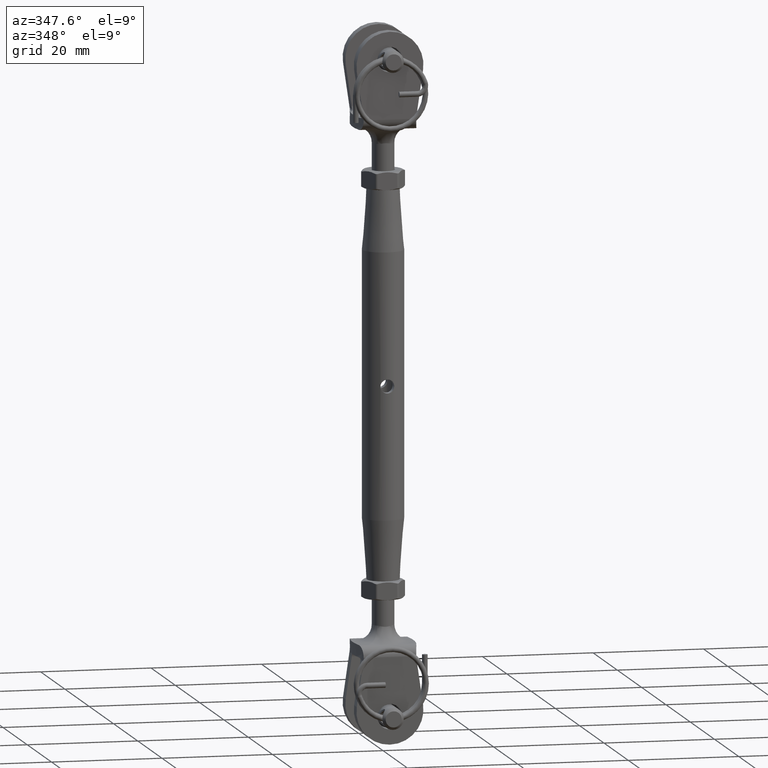
[diagram: clean part render]
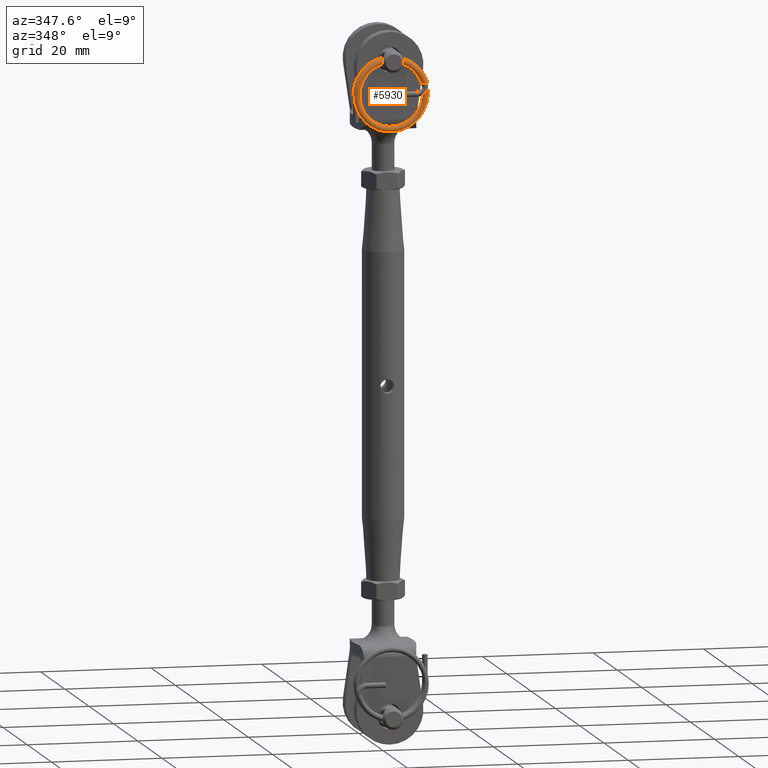
[diagram: same view with one face highlighted and labeled with its STEP entity id]
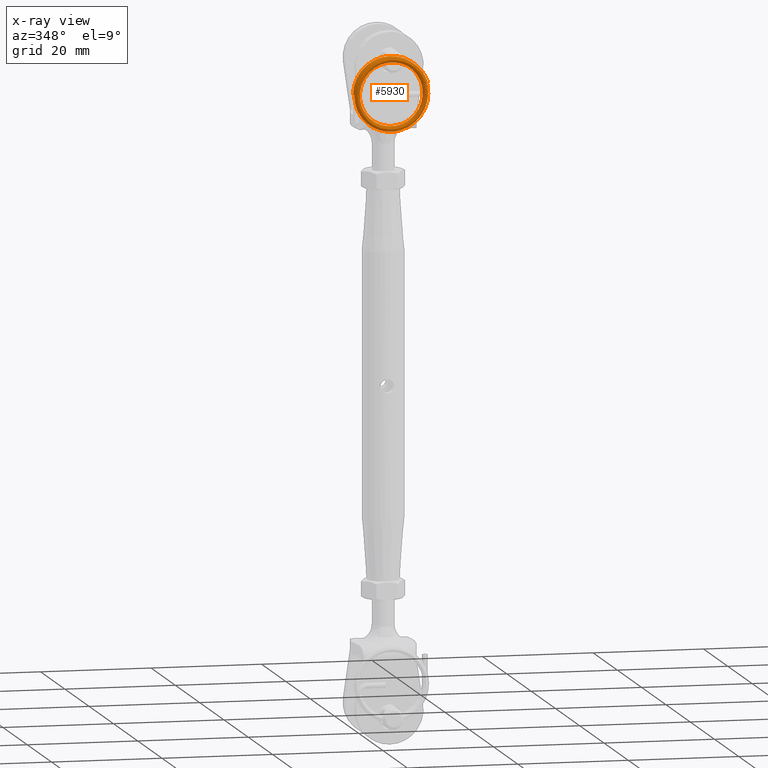
[diagram: x-ray of the same camera — body ghosted, the highlighted face saturated]
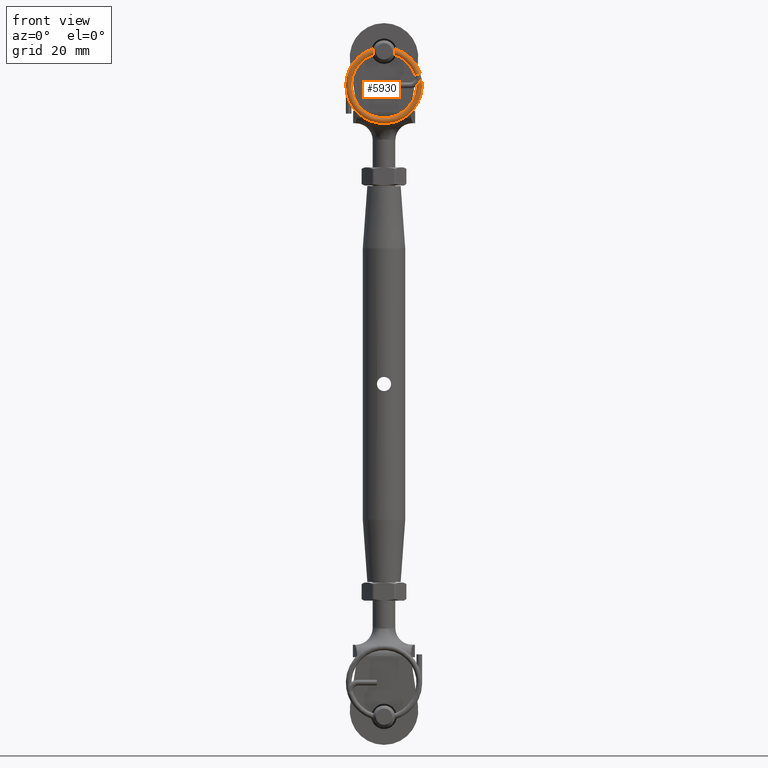
[diagram: same view with one face highlighted and labeled with its STEP entity id]
A machine part, auxiliary view. The second image highlights one B-rep face of the part: STEP entity #5930.
The next image is the same camera in x-ray: the body ghosted, the highlighted face saturated — about 0% of this face is hidden behind the body in this view.
A second angle (front view) of the same face is appended — the face is thin or edge-on in the first view.
In plain terms, the highlighted face is a freeform B-spline surface patch.
Its self-contained STEP definition (entity closure, byte-faithful):
#68 = CARTESIAN_POINT ( 'NONE',  ( -1.679743037384885000, 0.4686448400844398500, -5.535360417540456300 ) ) ;
#112 = CARTESIAN_POINT ( 'NONE',  ( -2.115543661786320100, 1.489548431730544500, -5.337107256068392800 ) ) ;
#170 = CARTESIAN_POINT ( 'NONE',  ( 5.300006513148680700, 0.8437582648471606600, 2.318605575720139800 ) ) ;
#300 = CARTESIAN_POINT ( 'NONE',  ( -1.089722534818368100, 1.031228627652526700, 5.688808982753646300 ) ) ;
#396 = CARTESIAN_POINT ( 'NONE',  ( -5.744769922462798400, 1.312419863309216300, -0.6793435576915143300 ) ) ;
#464 = DIRECTION ( 'NONE',  ( 1.000000000000000000, 0.0000000000000000000, 0.0000000000000000000 ) ) ;
#485 = CARTESIAN_POINT ( 'NONE',  ( -5.083976053296204600, 1.374895672621945200, -2.759959445431757500 ) ) ;
#579 = CARTESIAN_POINT ( 'NONE',  ( 0.0000000000000000000, 6.123233995736775900E-017, 6.750000000000000900 ) ) ;
#684 = CARTESIAN_POINT ( 'NONE',  ( -4.240449616144220000, 1.406279342405069700, -5.303512910907827800 ) ) ;
#768 = CARTESIAN_POINT ( 'NONE',  ( 1.837892090312905200, 1.562478065972044700, -6.536500023734348000 ) ) ;
#871 = CARTESIAN_POINT ( 'NONE',  ( -2.805057638667337800, 2.468712776970717600, -5.067667042148712200 ) ) ;
#975 = CARTESIAN_POINT ( 'NONE',  ( 6.384591987684067300, 1.718754482234935200, -2.314121951152984500 ) ) ;
#1074 = CARTESIAN_POINT ( 'NONE',  ( 6.222049992828569700, 0.8437373499185629700, 2.721085915396021600 ) ) ;
#1158 = CARTESIAN_POINT ( 'NONE',  ( 0.0000000000000000000, -1.000000000000001300, 6.750000000000001800 ) ) ;
#1216 = CARTESIAN_POINT ( 'NONE',  ( -0.4261591773678911100, 0.01039619189609499200, 6.726082123523351400 ) ) ;
#1254 = CARTESIAN_POINT ( 'NONE',  ( 1.842310656715859600, 0.5624780457383109500, -6.535229589347594900 ) ) ;
#1350 = CARTESIAN_POINT ( 'NONE',  ( -1.150928501685068800, 1.062528812855611200, 6.691980074444464000 ) ) ;
#1437 = CARTESIAN_POINT ( 'NONE',  ( 6.386650672607142800, 0.7187545300704325500, -2.308610244063527900 ) ) ;
#1493 = CARTESIAN_POINT ( 'NONE',  ( 0.0000000000000000000, 6.123233995736778400E-017, 6.750000000000000900 ) ) ;
#1524 = CARTESIAN_POINT ( 'NONE',  ( 5.781750713995071700, -0.2187653840530629500, 0.1957882765126661200 ) ) ;
#1623 = CARTESIAN_POINT ( 'NONE',  ( 1.402852344829922200, 2.617903107069341000E-005, 6.643712857989954500 ) ) ;
#1647 = CARTESIAN_POINT ( 'NONE',  ( -3.118548404185114800, 0.09365589173069328900, 4.872413445398431800 ) ) ;
#1688 = CARTESIAN_POINT ( 'NONE',  ( -1.150928501685068800, 1.062528812855611200, 6.691980074444464000 ) ) ;
#1718 = CARTESIAN_POINT ( 'NONE',  ( -0.3628299699173395700, -0.9896070769223038700, 5.729623502599239700 ) ) ;
#1755 = CARTESIAN_POINT ( 'NONE',  ( -4.398096962512643600, 0.3750485891087351200, -3.757091625925831100 ) ) ;
#1776 = CARTESIAN_POINT ( 'NONE',  ( -4.575767142718350800, 1.156220266169491400, 5.017049322567236100 ) ) ;
#1803 = CARTESIAN_POINT ( 'NONE',  ( -6.467786988087792300, 0.3437370881554383000, -2.065795871080707600 ) ) ;
#1825 = CARTESIAN_POINT ( 'NONE',  ( -1.089976470491445000, 0.03122862588380296100, 5.688790872217274400 ) ) ;
#1847 = CARTESIAN_POINT ( 'NONE',  ( 3.521191040371833800, 0.6250093466858468400, -4.588477969329735700 ) ) ;
#1897 = CARTESIAN_POINT ( 'NONE',  ( 4.327754160570094700, -0.3438168671365968200, -3.838961388744818800 ) ) ;
#1924 = CARTESIAN_POINT ( 'NONE',  ( 3.220008712912984200, 1.937416888476963100, 4.804617826524743200 ) ) ;
#1995 = CARTESIAN_POINT ( 'NONE',  ( -5.587453976897068100, 1.249894342814080100, 1.497708583279989900 ) ) ;
#2016 = CARTESIAN_POINT ( 'NONE',  ( -2.695926364336394000, 1.437544308179770300, -5.117588580760408200 ) ) ;
#2034 = CARTESIAN_POINT ( 'NONE',  ( -0.9790234605027314800, 1.062397054702993700, 5.700760101279437100 ) ) ;
#2052 = CARTESIAN_POINT ( 'NONE',  ( 5.595356843255422600, 0.8750160783074341100, 3.846282845770700600 ) ) ;
#2079 = CARTESIAN_POINT ( 'NONE',  ( -5.776801956711722100, 0.2500470149679475700, 0.3022119201944986100 ) ) ;
#2174 = CARTESIAN_POINT ( 'NONE',  ( -2.104325060582612500, 0.4895484174321751400, -5.341613355104746200 ) ) ;
#2275 = CARTESIAN_POINT ( 'NONE',  ( 4.970694078700016200, 0.6874911657528245400, -2.957096164821417800 ) ) ;
#2355 = CARTESIAN_POINT ( 'NONE',  ( -1.776847038075101800, 1.499941355248576700, -5.468575191314405600 ) ) ;
#2375 = CARTESIAN_POINT ( 'NONE',  ( -0.9790234605027314800, 1.062397054702993700, 5.700760101279437100 ) ) ;
#2490 = CARTESIAN_POINT ( 'NONE',  ( -3.117832187875161100, 1.093655891448586800, 4.872711294869762200 ) ) ;
#2557 = CARTESIAN_POINT ( 'NONE',  ( -5.769128616917475600, 1.281293667893834300, 0.4156496080865382800 ) ) ;
#2591 = CARTESIAN_POINT ( 'NONE',  ( 5.711557606202245700, 1.749970714375700600, -0.9108282551889144200 ) ) ;
#2689 = CARTESIAN_POINT ( 'NONE',  ( -0.9790234605027314800, 1.062397054702993700, 5.700760101279437100 ) ) ;
#2780 = CARTESIAN_POINT ( 'NONE',  ( -6.166068605985357100, 1.187474296920783200, 2.845292683586175800 ) ) ;
#2871 = CARTESIAN_POINT ( 'NONE',  ( -2.514378972684704100, 1.062457145814643700, 6.305487955153871800 ) ) ;
#2920 = EDGE_CURVE ( 'NONE', #15069, #19904, #14366, .T. ) ;
#2974 = CARTESIAN_POINT ( 'NONE',  ( 5.073022950310433800, 1.656262608710228100, -4.514580746070233600 ) ) ;
#3074 = CARTESIAN_POINT ( 'NONE',  ( 6.787645420891187200, 1.781245419850980200, 0.2156433240812687900 ) ) ;
#3162 = CARTESIAN_POINT ( 'NONE',  ( -6.726143406399407000, 1.281276786324140300, -0.9289999423778553300 ) ) ;
#3253 = CARTESIAN_POINT ( 'NONE',  ( 1.410824425741710400, 1.000026196949119300, 6.641891281598598900 ) ) ;
#3354 = CARTESIAN_POINT ( 'NONE',  ( -3.162533552695734800, 0.4374711890354099900, -6.008794826917685400 ) ) ;
#3444 = CARTESIAN_POINT ( 'NONE',  ( 0.1343085122446101300, 1.031222230210599800, 6.789320519832893200 ) ) ;
#3524 = CARTESIAN_POINT ( 'NONE',  ( -3.281504741595980200, 1.468761554945645900, -5.955577626693389500 ) ) ;
#3560 = CARTESIAN_POINT ( 'NONE',  ( 4.324117696885025500, 0.6561830909489927400, -3.842916473206150000 ) ) ;
#3610 = CARTESIAN_POINT ( 'NONE',  ( -3.662406537571600000, -0.9062237617561598200, 5.719118254419579600 ) ) ;
#3634 = CARTESIAN_POINT ( 'NONE',  ( 5.781930597318818400, 0.7812345651901191300, 0.1893963513100968800 ) ) ;
#3659 = FACE_OUTER_BOUND ( 'NONE', #8056, .T. ) ;
#3670 = CARTESIAN_POINT ( 'NONE',  ( -4.674523548757377100, 0.1249950493702555900, 4.925860726716836200 ) ) ;
#3702 = CARTESIAN_POINT ( 'NONE',  ( 5.297240603164075500, -0.1562416850545979300, 2.324932691889466200 ) ) ;
#3787 = CARTESIAN_POINT ( 'NONE',  ( -4.582722033702952800, 0.1562202624674018700, 5.010642640873072700 ) ) ;
#3809 = CARTESIAN_POINT ( 'NONE',  ( -5.477351939014163800, 0.3125470956615854500, -1.859946981489535300 ) ) ;
#3849 = CARTESIAN_POINT ( 'NONE',  ( -6.743677460552943300, 1.312525692545144700, -0.7990830678339943000 ) ) ;
#3880 = CARTESIAN_POINT ( 'NONE',  ( -3.982995444912908600, -0.8749543155467456300, 4.195182608079487200 ) ) ;
#3907 = CARTESIAN_POINT ( 'NONE',  ( -0.3627454598246998600, 0.01039292366633022500, 5.729629529807186600 ) ) ;
#3923 = CARTESIAN_POINT ( 'NONE',  ( -3.611236508358752300, 0.4061433781139247000, -4.518724630796103100 ) ) ;
#3943 = CARTESIAN_POINT ( 'NONE',  ( -4.340231899913667300, 1.437542848405738000, -5.219574383118118300 ) ) ;
#3977 = CARTESIAN_POINT ( 'NONE',  ( -5.027187359423634500, -0.6563578237581920700, -2.861330285836471500 ) ) ;
#4000 = CARTESIAN_POINT ( 'NONE',  ( -4.701022992481298100, 0.1561982214262561400, 3.369186665805714100 ) ) ;
#4068 = CARTESIAN_POINT ( 'NONE',  ( -3.271008716436508900, 0.4687615085334709300, -5.961451327520447500 ) ) ;
#4091 = CARTESIAN_POINT ( 'NONE',  ( -5.200151467148417700, 2.218784994209057200, 2.532763934914505000 ) ) ;
#4104 = CARTESIAN_POINT ( 'NONE',  ( -1.776847038075101800, 1.499941355248576700, -5.468575191314405600 ) ) ;
#4125 = CARTESIAN_POINT ( 'NONE',  ( 4.132933855276250200, 0.6249839226963905800, -5.387092693660391300 ) ) ;
#4151 = CARTESIAN_POINT ( 'NONE',  ( 3.213697587124481300, 0.9374168608231211500, 4.808968417003235600 ) ) ;
#4192 = ORIENTED_EDGE ( 'NONE', *, *, #17222, .F. ) ;
#4209 = CARTESIAN_POINT ( 'NONE',  ( -6.772441566673308000, 1.281223154571503600, 0.4893273290642596900 ) ) ;
#4242 = CARTESIAN_POINT ( 'NONE',  ( -5.508768403117876700, 0.3437430923853184700, -1.762067773670780200 ) ) ;
#4342 = CARTESIAN_POINT ( 'NONE',  ( 2.592093682690916900, 0.5936650322712939700, -5.171650189083027100 ) ) ;
#4435 = CARTESIAN_POINT ( 'NONE',  ( -2.784065588348398000, 0.4687126841463673000, -5.079414443802833500 ) ) ;
#4510 = CARTESIAN_POINT ( 'NONE',  ( -1.788426062837476800, 2.499941353528465400, -5.464751257024829600 ) ) ;
#4570 = CARTESIAN_POINT ( 'NONE',  ( 5.300006513148680700, 0.8437582648471606600, 2.318605575720139800 ) ) ;
#4668 = CARTESIAN_POINT ( 'NONE',  ( -0.6082042980664718000, 1.500036266008469800, -5.752044881709252000 ) ) ;
#4731 = CARTESIAN_POINT ( 'NONE',  ( -5.512074271685498200, 1.343743133500562700, -1.751591613145540200 ) ) ;
#4764 = CARTESIAN_POINT ( 'NONE',  ( 5.302772423133286700, 1.843758214748920000, 2.312278459550810400 ) ) ;
#4847 = CARTESIAN_POINT ( 'NONE',  ( 2.248168241521669500, 0.9687887645735409100, 5.330027889267442200 ) ) ;
#4943 = CARTESIAN_POINT ( 'NONE',  ( 6.224815902813176600, 1.843737299820321000, 2.714758799226693900 ) ) ;
#5045 = CARTESIAN_POINT ( 'NONE',  ( -5.515380140253114400, 2.343743174615805700, -1.741115452620299200 ) ) ;
#5135 = CARTESIAN_POINT ( 'NONE',  ( 0.1427437367318084000, 2.031222203956173400, 6.789197826762976000 ) ) ;
#5225 = CARTESIAN_POINT ( 'NONE',  ( 3.777949642474627700, 1.937521983188589500, 5.641716822269350100 ) ) ;
#5322 = CARTESIAN_POINT ( 'NONE',  ( -4.349242288521346600, 2.437542682542858800, -5.212018381351367000 ) ) ;
#5422 = CARTESIAN_POINT ( 'NONE',  ( -6.725773964421511800, -0.7187232152451352700, -0.9335904738106866100 ) ) ;
#5493 = CARTESIAN_POINT ( 'NONE',  ( 0.0000000000000000000, 0.0000000000000000000, 5.750000000000000000 ) ) ;
#5507 = CARTESIAN_POINT ( 'NONE',  ( -4.340231899913667300, 1.437542848405738000, -5.219574383118118300 ) ) ;
#5598 = CARTESIAN_POINT ( 'NONE',  ( -2.390971971781386400, 1.093720647268486600, 6.355617985894871100 ) ) ;
#5692 = CARTESIAN_POINT ( 'NONE',  ( -5.164140359918112800, 0.3749704526932209300, -4.409213065106646600 ) ) ;
#5729 = CARTESIAN_POINT ( 'NONE',  ( 5.440416333594976500, 0.7187067907413397000, -1.966840749809478000 ) ) ;
#5781 = CARTESIAN_POINT ( 'NONE',  ( -4.331221511305992400, 0.4375430142686167500, -5.227130384884876700 ) ) ;
#5859 = CARTESIAN_POINT ( 'NONE',  ( -5.447498188632676100, 0.1875291942309464700, 4.054433369613685800 ) ) ;
#5904 = CARTESIAN_POINT ( 'NONE',  ( -2.143895823114374100, 0.06245260768009560500, 5.370603954657442900 ) ) ;
#5930 = ADVANCED_FACE ( 'NONE', ( #3659 ), #21955, .F. ) ;
#5960 = CARTESIAN_POINT ( 'NONE',  ( 5.080295877680569600, -0.3437373074609514900, -4.506670577147571200 ) ) ;
#6026 = CARTESIAN_POINT ( 'NONE',  ( 6.386650672607142800, 0.7187545300704325500, -2.308610244063527900 ) ) ;
#6055 = CARTESIAN_POINT ( 'NONE',  ( 2.633215280549916900, -0.03127430232641117300, 6.259455729474644200 ) ) ;
#6124 = CARTESIAN_POINT ( 'NONE',  ( 6.222049992828569700, 0.8437373499185629700, 2.721085915396021600 ) ) ;
#6151 = CARTESIAN_POINT ( 'NONE',  ( -6.742519212140481800, 0.3125257928978171800, -0.8097608054514321400 ) ) ;
#6173 = CARTESIAN_POINT ( 'NONE',  ( -5.253672491716504700, 0.1875214939739838500, 2.421324933074011200 ) ) ;
#6189 = CARTESIAN_POINT ( 'NONE',  ( -3.898917781887391200, 1.156299182260947400, 4.272768827389623600 ) ) ;
#6211 = CARTESIAN_POINT ( 'NONE',  ( -2.390971971781386400, 1.093720647268486600, 6.355617985894871100 ) ) ;
#6245 = CARTESIAN_POINT ( 'NONE',  ( -3.898917781887391200, 1.156299182260947400, 4.272768827389623600 ) ) ;
#6270 = CARTESIAN_POINT ( 'NONE',  ( -3.698573410097952200, 1.437488748494887900, -4.445248128178698200 ) ) ;
#6288 = CARTESIAN_POINT ( 'NONE',  ( 4.766768929291375300, 0.8749320095637024300, 3.275794623423208900 ) ) ;
#6344 = CARTESIAN_POINT ( 'NONE',  ( -3.118548404185114800, 0.09365589173069328900, 4.872413445398431800 ) ) ;
#6407 = CARTESIAN_POINT ( 'NONE',  ( -6.781384187061188000, 0.2499748927732847500, 0.3562919820453353500 ) ) ;
#6438 = CARTESIAN_POINT ( 'NONE',  ( -5.028449006423197300, 0.3436421721271117900, -2.858813384152024500 ) ) ;
#6524 = CARTESIAN_POINT ( 'NONE',  ( 3.521191040371833800, 0.6250093466858468400, -4.588477969329735700 ) ) ;
#6566 = CARTESIAN_POINT ( 'NONE',  ( 4.063354862979712900, 0.9062763232890418400, 4.117531124766744100 ) ) ;
#6624 = CARTESIAN_POINT ( 'NONE',  ( 0.1045539434760975600, 0.03129654111527950500, 5.783632442810779900 ) ) ;
#6758 = CARTESIAN_POINT ( 'NONE',  ( 0.1129891679632957600, 1.031296514860853500, 5.783509749740861800 ) ) ;
#6847 = CARTESIAN_POINT ( 'NONE',  ( 4.320481233199958900, 1.656183049034582400, -3.846871557667483000 ) ) ;
#6907 = CARTESIAN_POINT ( 'NONE',  ( -5.083976053296204600, 1.374895672621945200, -2.759959445431757500 ) ) ;
#6922 = CARTESIAN_POINT ( 'NONE',  ( -1.776847038075101800, 1.499941355248576700, -5.468575191314405600 ) ) ;
#6945 = CARTESIAN_POINT ( 'NONE',  ( 2.255484142385413300, 1.968788727020868200, 5.326978296496781300 ) ) ;
#7037 = CARTESIAN_POINT ( 'NONE',  ( -3.292000766755450100, 2.468761601357821100, -5.949703925866328900 ) ) ;
#7136 = CARTESIAN_POINT ( 'NONE',  ( -6.431391534622179100, 1.312470836483597500, -2.179376830597505900 ) ) ;
#7226 = CARTESIAN_POINT ( 'NONE',  ( -4.478896364657767700, 2.406285539889395900, -3.661389053334111600 ) ) ;
#7334 = CARTESIAN_POINT ( 'NONE',  ( 5.832122125825822700, 1.687491370787316700, -3.476650465302142800 ) ) ;
#7440 = CARTESIAN_POINT ( 'NONE',  ( -6.104657739460958700, 2.218723233515322000, 2.973128997232179500 ) ) ;
#7529 = CARTESIAN_POINT ( 'NONE',  ( -6.429645411531447900, -0.6875291519516666400, -2.184185697186412000 ) ) ;
#7617 = CARTESIAN_POINT ( 'NONE',  ( -2.514868675652553300, 0.06245715251188140700, 6.305315627060765300 ) ) ;
#7707 = CARTESIAN_POINT ( 'NONE',  ( 5.595356843255422600, 0.8750160783074341100, 3.846282845770700600 ) ) ;
#7800 = CARTESIAN_POINT ( 'NONE',  ( -5.441579064462727500, 1.187529160050266700, 4.062136703513985500 ) ) ;
#7882 = CARTESIAN_POINT ( 'NONE',  ( 4.770876570652825800, 0.9062307030830418800, 4.832760712680169500 ) ) ;
#7901 = CARTESIAN_POINT ( 'NONE',  ( 0.4910665759594586800, 0.5311525906914155200, -5.763879891249798600 ) ) ;
#7916 = CARTESIAN_POINT ( 'NONE',  ( -3.982274766724069000, 0.1250456852404546200, 4.195911854010626400 ) ) ;
#7974 = CARTESIAN_POINT ( 'NONE',  ( 6.707156331015178300, -0.2500000360073224600, -1.056102408432076900 ) ) ;
#8056 = EDGE_LOOP ( 'NONE', ( #12071, #13460, #24808, #4192 ) ) ;
#8067 = CARTESIAN_POINT ( 'NONE',  ( -4.701829226773538700, -0.8438017825333207200, 3.368196472485470500 ) ) ;
#8091 = CARTESIAN_POINT ( 'NONE',  ( -5.729641718034946200, 0.2811563800930856900, -0.7919916739184781300 ) ) ;
#8108 = CARTESIAN_POINT ( 'NONE',  ( -3.118548404185114800, 0.09365589173069330300, 4.872413445398431800 ) ) ;
#8135 = CARTESIAN_POINT ( 'NONE',  ( 5.835011938009481400, 0.6874913378976595900, -3.471831340879308700 ) ) ;
#8163 = CARTESIAN_POINT ( 'NONE',  ( -6.562352871896614200, 0.2500251414270849800, 1.746865922445245900 ) ) ;
#8252 = CARTESIAN_POINT ( 'NONE',  ( -3.119264620495069400, -0.9063441079872004400, 4.872115595927103200 ) ) ;
#8278 = CARTESIAN_POINT ( 'NONE',  ( -1.679743037384885000, 0.4686448400844398500, -5.535360417540456300 ) ) ;
#8300 = CARTESIAN_POINT ( 'NONE',  ( -5.028449006423197300, 0.3436421721271117900, -2.858813384152024500 ) ) ;
#8317 = CARTESIAN_POINT ( 'NONE',  ( 3.043968072372838400, 0.5937692972249085700, -6.070510499310630700 ) ) ;
#8351 = CARTESIAN_POINT ( 'NONE',  ( -3.608730351097442700, -0.5938566121469507400, -4.520912633131471700 ) ) ;
#8374 = CARTESIAN_POINT ( 'NONE',  ( 0.0000000000000000000, 1.000000000000001300, 5.750000000000000000 ) ) ;
#8393 = CARTESIAN_POINT ( 'NONE',  ( -5.083976053296204600, 1.374895672621945200, -2.759959445431757500 ) ) ;
#8415 = CARTESIAN_POINT ( 'NONE',  ( -5.902166676849730300, 0.3437797329700074700, -3.357507611590548000 ) ) ;
#8448 = CARTESIAN_POINT ( 'NONE',  ( 1.570355799504873600, 0.5625244956961914500, -5.566687708908124100 ) ) ;
#8471 = CARTESIAN_POINT ( 'NONE',  ( -3.981554088535226700, 1.125045686027654800, 4.196641099941761200 ) ) ;
#8538 = CARTESIAN_POINT ( 'NONE',  ( 0.4910665759594586800, 0.5311525906914155200, -5.763879891249798600 ) ) ;
#8626 = CARTESIAN_POINT ( 'NONE',  ( -2.046484755553596500, 0.09379798852737662700, 5.410302896943908200 ) ) ;
#8722 = CARTESIAN_POINT ( 'NONE',  ( 5.712561653087942800, 0.7499706779955401800, -0.9047805028993938200 ) ) ;
#8764 = CARTESIAN_POINT ( 'NONE',  ( -4.634516509910231900, 1.187394261904921600, 3.461508892128968300 ) ) ;
#8819 = CARTESIAN_POINT ( 'NONE',  ( -5.078715623723190300, 0.3748956862803889400, -2.769901267912807900 ) ) ;
#8905 = CARTESIAN_POINT ( 'NONE',  ( -5.744769922462798400, 1.312419863309216300, -0.6793435576915143300 ) ) ;
#8940 = CARTESIAN_POINT ( 'NONE',  ( -4.700216758189054800, 1.156198225385833400, 3.370176859125958700 ) ) ;
#9035 = CARTESIAN_POINT ( 'NONE',  ( -0.3626609497320603700, 1.010392924254964100, 5.729635557015131800 ) ) ;
#9138 = CARTESIAN_POINT ( 'NONE',  ( -0.9704376263656328000, 2.062397058847492900, 5.702100775624874300 ) ) ;
#9209 = DIRECTION ( 'NONE',  ( 0.0000000000000000000, 0.0000000000000000000, -1.000000000000000000 ) ) ;
#9226 = CARTESIAN_POINT ( 'NONE',  ( -2.494993740149128700, 2.489603822551385000, -6.260687708811382800 ) ) ;
#9315 = CARTESIAN_POINT ( 'NONE',  ( -5.745928170875259000, 2.312419762956544400, -0.6686658200740761600 ) ) ;
#9420 = CARTESIAN_POINT ( 'NONE',  ( -3.707583798705629300, 2.437488582632009000, -4.437692126411943300 ) ) ;
#9516 = CARTESIAN_POINT ( 'NONE',  ( -5.435659940292785200, 2.187529125869586400, 4.069840037414286900 ) ) ;
#9597 = CARTESIAN_POINT ( 'NONE',  ( -6.744835708965403000, 2.312525592192472300, -0.7884053302165563400 ) ) ;
#9695 = CARTESIAN_POINT ( 'NONE',  ( -3.159344885721822900, -0.5625288167083969400, -6.010416763004420700 ) ) ;
#9798 = CARTESIAN_POINT ( 'NONE',  ( -1.280775754580107700, -0.9687615555179196500, 6.678113525911222800 ) ) ;
#9885 = CARTESIAN_POINT ( 'NONE',  ( -4.674523548757377100, 0.1249950493702555900, 4.925860726716836200 ) ) ;
#9967 = CARTESIAN_POINT ( 'NONE',  ( -4.575767142718350800, 1.156220266169491400, 5.017049322567236100 ) ) ;
#10047 = CARTESIAN_POINT ( 'NONE',  ( -2.515358378620400800, -0.9375428407908805700, 6.305143298967657900 ) ) ;
#10070 = CARTESIAN_POINT ( 'NONE',  ( 3.521191040371833800, 0.6250093466858468400, -4.588477969329735700 ) ) ;
#10145 = CARTESIAN_POINT ( 'NONE',  ( -5.254292063797499200, -0.8124784934625655100, 2.419916272921037900 ) ) ;
#10201 = CARTESIAN_POINT ( 'NONE',  ( -6.166688178066353400, 0.1874743094842342100, 2.843884023433202100 ) ) ;
#10225 = AXIS2_PLACEMENT_3D ( 'NONE', #21981, #464, #9209 ) ;
#10229 = CARTESIAN_POINT ( 'NONE',  ( -1.966650582368936000, -0.5312222131556110200, -6.499780097559080300 ) ) ;
#10291 = CARTESIAN_POINT ( 'NONE',  ( -0.7106834533093400200, 0.4999738046348306000, -6.752782715170990700 ) ) ;
#10324 = CARTESIAN_POINT ( 'NONE',  ( -5.962650277369392300, 0.3750049669001361300, -3.250206641299166100 ) ) ;
#10349 = CARTESIAN_POINT ( 'NONE',  ( -4.398096962512643600, 0.3750485891087351200, -3.757091625925831100 ) ) ;
#10383 = CARTESIAN_POINT ( 'NONE',  ( -4.237943458882908100, 0.4062793521441939200, -5.305700913243197400 ) ) ;
#10418 = CARTESIAN_POINT ( 'NONE',  ( -3.556784159719542000, 0.1250295587486781600, 5.784526477061084500 ) ) ;
#10445 = CARTESIAN_POINT ( 'NONE',  ( -0.6041354409410045800, 0.5000362530254084400, -5.752433656295322900 ) ) ;
#10467 = CARTESIAN_POINT ( 'NONE',  ( -1.679743037384885000, 0.4686448400844398000, -5.535360417540454500 ) ) ;
#10520 = CARTESIAN_POINT ( 'NONE',  ( 0.4954102462180465200, -0.4688473836870859500, -5.763640372813998900 ) ) ;
#10545 = CARTESIAN_POINT ( 'NONE',  ( -2.038127962917843900, 1.093797976548279900, 5.413495706700403300 ) ) ;
#10558 = CARTESIAN_POINT ( 'NONE',  ( -3.698573410097952200, 1.437488748494887900, -4.445248128178698200 ) ) ;
#10574 = CARTESIAN_POINT ( 'NONE',  ( 4.770876570652825800, 0.9062307030830417700, 4.832760712680169500 ) ) ;
#10599 = CARTESIAN_POINT ( 'NONE',  ( 0.0000000000000000000, 0.0000000000000000000, 5.750000000000000000 ) ) ;
#10624 = CARTESIAN_POINT ( 'NONE',  ( 2.587697699229396500, 1.593664998108858600, -5.173726479975989000 ) ) ;
#10701 = CARTESIAN_POINT ( 'NONE',  ( -1.089976470491445000, 0.03122862588380296100, 5.688790872217274400 ) ) ;
#10801 = CARTESIAN_POINT ( 'NONE',  ( -1.765268013312727400, 0.4999413569686903500, -5.472399125603981700 ) ) ;
#10880 = CARTESIAN_POINT ( 'NONE',  ( 0.0000000000000000000, 6.123233995736778400E-017, 6.750000000000000900 ) ) ;
#10885 = CARTESIAN_POINT ( 'NONE',  ( 2.248168241521669500, 0.9687887645735409100, 5.330027889267442200 ) ) ;
#10976 = CARTESIAN_POINT ( 'NONE',  ( 5.440416333594976500, 0.7187067907413397000, -1.966840749809478000 ) ) ;
#11113 = CARTESIAN_POINT ( 'NONE',  ( 3.213697587124481300, 0.9374168608231211500, 4.808968417003235600 ) ) ;
#11209 = CARTESIAN_POINT ( 'NONE',  ( -5.776745880019543500, 1.250047011564625400, 0.3042585335530065300 ) ) ;
#11292 = CARTESIAN_POINT ( 'NONE',  ( -3.891962890902786100, 2.156299185963036700, 4.279175509083787100 ) ) ;
#11389 = CARTESIAN_POINT ( 'NONE',  ( -5.089236482869225100, 2.374895658963502000, -2.750017622950709400 ) ) ;
#11420 = VERTEX_POINT ( 'NONE', #5493 ) ;
#11490 = CARTESIAN_POINT ( 'NONE',  ( -2.382615179145631100, 2.093720635289389800, 6.358810795651362600 ) ) ;
#11577 = CARTESIAN_POINT ( 'NONE',  ( -6.591619144885353200, 1.218776846221576700, 1.629123170690252500 ) ) ;
#11672 = CARTESIAN_POINT ( 'NONE',  ( -6.781328110369010200, 1.249974889369962900, 0.3583385954038432200 ) ) ;
#11773 = CARTESIAN_POINT ( 'NONE',  ( 0.5736148975122059600, 1.531274314270966200, -6.766404351567568500 ) ) ;
#11870 = CARTESIAN_POINT ( 'NONE',  ( -5.519246302094050100, 0.1562628704106008000, 3.954402877894930500 ) ) ;
#11961 = CARTESIAN_POINT ( 'NONE',  ( -6.592185133618673200, 0.2187768442755374000, 1.627421637519147000 ) ) ;
#12046 = CARTESIAN_POINT ( 'NONE',  ( -6.167307750147347900, -0.8125256779523151200, 2.842475363280229800 ) ) ;
#12071 = ORIENTED_EDGE ( 'NONE', *, *, #2920, .F. ) ;
#12141 = CARTESIAN_POINT ( 'NONE',  ( -6.559579924427477900, 1.250025109758417400, 1.756709048566495300 ) ) ;
#12225 = CARTESIAN_POINT ( 'NONE',  ( -3.661690321261645000, 0.09377623796173370500, 5.719416103890908200 ) ) ;
#12310 = CARTESIAN_POINT ( 'NONE',  ( 3.765327390897621500, -0.06247807211909500700, 5.650418003226334000 ) ) ;
#12402 = CARTESIAN_POINT ( 'NONE',  ( -1.159514335822167800, 0.06252880871111027300, 6.690639400099026800 ) ) ;
#12447 = CARTESIAN_POINT ( 'NONE',  ( -5.615210325643620800, 0.2186476861999250000, 1.387451858147809200 ) ) ;
#12470 = CARTESIAN_POINT ( 'NONE',  ( -6.108980775299485800, 1.218723213583165800, 2.964149944835630500 ) ) ;
#12504 = CARTESIAN_POINT ( 'NONE',  ( -2.074285687268390400, 0.5000000017201102800, -6.423455419281880000 ) ) ;
#12565 = CARTESIAN_POINT ( 'NONE',  ( 0.5779585677707936900, 0.5312743398924655300, -6.766164833131767900 ) ) ;
#12591 = CARTESIAN_POINT ( 'NONE',  ( -5.776858033403897300, -0.7499529816287309200, 0.3001653068359905800 ) ) ;
#12630 = CARTESIAN_POINT ( 'NONE',  ( 0.4910665759594586800, 0.5311525906914155200, -5.763879891249798600 ) ) ;
#12654 = CARTESIAN_POINT ( 'NONE',  ( -3.162533552695734800, 0.4374711890354099900, -6.008794826917685400 ) ) ;
#12684 = CARTESIAN_POINT ( 'NONE',  ( 2.596489666152439900, -0.4063349335662710400, -5.169573898190067000 ) ) ;
#12706 = CARTESIAN_POINT ( 'NONE',  ( 3.517140777561796700, 1.625009373900232000, -4.591590609931916600 ) ) ;
#12738 = CARTESIAN_POINT ( 'NONE',  ( -6.471092856655412000, 1.343737129270682800, -2.055319710555468600 ) ) ;
#12774 = CARTESIAN_POINT ( 'NONE',  ( -0.3627454598246998600, 0.01039292366633022500, 5.729629529807186600 ) ) ;
#12797 = CARTESIAN_POINT ( 'NONE',  ( -5.614644336910297200, 1.218647688145964200, 1.389153391318913400 ) ) ;
#12816 = CARTESIAN_POINT ( 'NONE',  ( 1.203032054334925500, 0.9999051038055339900, 5.657577795917790200 ) ) ;
#12870 = CARTESIAN_POINT ( 'NONE',  ( 0.1129891679632957600, 1.031296514860853500, 5.783509749740861800 ) ) ;
#12943 = CARTESIAN_POINT ( 'NONE',  ( -4.398096962512643600, 0.3750485891087351200, -3.757091625925831100 ) ) ;
#12990 = CARTESIAN_POINT ( 'NONE',  ( 5.712561653087942800, 0.7499706779955400700, -0.9047805028993938200 ) ) ;
#13049 = CARTESIAN_POINT ( 'NONE',  ( -5.743611674050336900, 0.3124199636618890100, -0.6900212953089518400 ) ) ;
#13090 = CARTESIAN_POINT ( 'NONE',  ( -2.038127962917843900, 1.093797976548280100, 5.413495706700403300 ) ) ;
#13146 = CARTESIAN_POINT ( 'NONE',  ( 4.766768929291375300, 0.8749320095637024300, 3.275794623423208900 ) ) ;
#13241 = CARTESIAN_POINT ( 'NONE',  ( -1.776847038075101800, 1.499941355248576700, -5.468575191314405600 ) ) ;
#13270 = CARTESIAN_POINT ( 'NONE',  ( -2.143406120146524000, 1.062452600982857400, 5.370776282750545900 ) ) ;
#13360 = CARTESIAN_POINT ( 'NONE',  ( 4.967804266516354900, 1.687491198642482100, -2.961915289244252000 ) ) ;
#13453 = CARTESIAN_POINT ( 'NONE',  ( -4.634516509910231900, 1.187394261904921600, 3.461508892128968300 ) ) ;
#13460 = ORIENTED_EDGE ( 'NONE', *, *, #27571, .F. ) ;
#13548 = CARTESIAN_POINT ( 'NONE',  ( -4.568812251733743500, 2.156220269871580900, 5.023456004261397800 ) ) ;
#13636 = CARTESIAN_POINT ( 'NONE',  ( -1.142342667547970400, 2.062528817000111000, 6.693320748789899400 ) ) ;
#13737 = CARTESIAN_POINT ( 'NONE',  ( -5.166174007747865300, 1.374970453407092800, -4.406916419678268000 ) ) ;
#13837 = CARTESIAN_POINT ( 'NONE',  ( -5.768413662012996200, 2.281293708144756000, 0.4261018016242882900 ) ) ;
#13933 = CARTESIAN_POINT ( 'NONE',  ( -0.7147523104348078000, 1.499973817617892900, -6.752393940584918900 ) ) ;
#14020 = CARTESIAN_POINT ( 'NONE',  ( -6.166688178066353400, 0.1874743094842342100, 2.843884023433202100 ) ) ;
#14118 = CARTESIAN_POINT ( 'NONE',  ( -4.675244226946215800, -0.8750049514169447900, 4.925131480785697800 ) ) ;
#14208 = CARTESIAN_POINT ( 'NONE',  ( 5.076659413995502100, 0.6562626506246381800, -4.510625661608902000 ) ) ;
#14286 = CARTESIAN_POINT ( 'NONE',  ( 5.835011938009481400, 0.6874913378976595900, -3.471831340879308700 ) ) ;
#14366 = B_SPLINE_CURVE_WITH_KNOTS ( 'NONE', 3,
 ( #1493, #1216, #16622, #22914, #25078, #3670, #20985, #10201, #27534, #6407, #25733, #23375, #8415, #25536, #10383, #12654, #21369, #10291, #12565, #16808, #8317, #4125, #25818, #8135, #6026, #27828, #19088, #27731, #6124, #2052, #10574, #25635, #19381, #14721, #21276, #1688, #6211, #23562, #1776, #25445, #12470, #16911, #4209, #3849, #12738, #21175, #27910, #3943, #14915, #23270, #23462 ),
 .UNSPECIFIED., .F., .F.,
 ( 4, 1, 1, 1, 1, 1, 1, 1, 1, 1, 1, 1, 1, 1, 1, 1, 1, 1, 1, 1, 1, 1, 1, 1, 1, 1, 1, 1, 1, 1, 1, 1, 1, 1, 1, 1, 1, 1, 1, 1, 1, 1, 1, 1, 1, 1, 1, 1, 4 ),
 ( 0.0000000000000000000, 0.02078566451818509100, 0.04167103792903315700, 0.06250742885531192200, 0.08333457381428606400, 0.1041610744324122500, 0.1250055619324686200, 0.1458287117441812200, 0.1666715678880542100, 0.1874943420413610600, 0.2083390654163878900, 0.2291603406841008800, 0.2500054056506301700, 0.2708267274504983500, 0.2916716580503060400, 0.3124934474862337000, 0.3333375599432847900, 0.3541606275602851600, 0.3750032836527286700, 0.3958282987385753900, 0.4166688684605455200, 0.4374965070321431600, 0.4583343796531516000, 0.4791652709866297500, 0.4999998619717560000, 0.5208344534433141400, 0.5416653461979267200, 0.5625032212701754900, 0.5833308631160126800, 0.6041714372969011500, 0.6249964574715859400, 0.6458391200575672700, 0.6666621945574920900, 0.6875063155560520200, 0.7083281136610012400, 0.7291730548392965100, 0.7499943871204046700, 0.7708394647104771500, 0.7916607522630807500, 0.8125054901759173300, 0.8333282785652845700, 0.8541711514059914200, 0.8749943172571704700, 0.8958388227604090500, 0.9166653416743155700, 0.9374925075621334300, 0.9583289185481412800, 0.9792143130261046200, 1.000000000000000000 ),
 .UNSPECIFIED. ) ;
#14374 = CARTESIAN_POINT ( 'NONE',  ( -6.471092856655412000, 1.343737129270682800, -2.055319710555468600 ) ) ;
#14394 = CARTESIAN_POINT ( 'NONE',  ( 5.440416333594976500, 0.7187067907413397000, -1.966840749809478000 ) ) ;
#14473 = CARTESIAN_POINT ( 'NONE',  ( 5.713565699973643500, -0.2500293583846207000, -0.8987327506098741200 ) ) ;
#14516 = CARTESIAN_POINT ( 'NONE',  ( -0.3627454598246998600, 0.01039292366633022500, 5.729629529807186600 ) ) ;
#14567 = CARTESIAN_POINT ( 'NONE',  ( -2.144385526082222400, -0.9375473856226662600, 5.370431626564336400 ) ) ;
#14661 = CARTESIAN_POINT ( 'NONE',  ( 0.1258732877574118000, 0.03122225646502603200, 6.789443212902812200 ) ) ;
#14681 = CARTESIAN_POINT ( 'NONE',  ( -2.143895823114374100, 0.06245260768009560500, 5.370603954657442900 ) ) ;
#14703 = CARTESIAN_POINT ( 'NONE',  ( -5.477351939014163800, 0.3125470956615854500, -1.859946981489535300 ) ) ;
#14721 = CARTESIAN_POINT ( 'NONE',  ( 1.410824425741710600, 1.000026196949119300, 6.641891281598598900 ) ) ;
#14753 = CARTESIAN_POINT ( 'NONE',  ( -5.476478877468802700, -0.6874528985560467400, -1.862351414783988800 ) ) ;
#14779 = CARTESIAN_POINT ( 'NONE',  ( 0.0000000000000000000, 0.0000000000000000000, 5.750000000000000000 ) ) ;
#14796 = CARTESIAN_POINT ( 'NONE',  ( 2.592093682690916900, 0.5936650322712939700, -5.171650189083027100 ) ) ;
#14852 = CARTESIAN_POINT ( 'NONE',  ( 3.525241303181866600, -0.3749906805285381800, -4.585365328727550400 ) ) ;
#14876 = CARTESIAN_POINT ( 'NONE',  ( -2.115543661786320100, 1.489548431730544500, -5.337107256068392800 ) ) ;
#14915 = CARTESIAN_POINT ( 'NONE',  ( -3.281504741595980200, 1.468761554945645600, -5.955577626693388600 ) ) ;
#14941 = CARTESIAN_POINT ( 'NONE',  ( -5.204474502986943900, 1.218784974276901500, 2.523784882517956100 ) ) ;
#14963 = CARTESIAN_POINT ( 'NONE',  ( -2.029771170282089500, 2.093797964569184400, 5.416688516456895600 ) ) ;
#14976 = CARTESIAN_POINT ( 'NONE',  ( -3.021834293538230700, 1.124892768313874100, 4.932292766011608300 ) ) ;
#15036 = CARTESIAN_POINT ( 'NONE',  ( 4.058063111661145900, -0.09372363102530623100, 4.122726472269777200 ) ) ;
#15069 = VERTEX_POINT ( 'NONE', #10880 ) ;
#15077 = CARTESIAN_POINT ( 'NONE',  ( -2.794561613507868800, 1.468712730558542300, -5.073540742975773700 ) ) ;
#15126 = CARTESIAN_POINT ( 'NONE',  ( -2.692737697362480400, 0.4375443024359634300, -5.119210516847141800 ) ) ;
#15188 =( BOUNDED_CURVE ( )  B_SPLINE_CURVE ( 3, ( #26197, #23850, #4510, #2355 ),
 .UNSPECIFIED., .F., .F. ) 
 B_SPLINE_CURVE_WITH_KNOTS ( ( 4, 4 ),
 ( 0.4999999999999996700, 1.000000000000000000 ),
 .UNSPECIFIED. ) 
 CURVE ( )  GEOMETRIC_REPRESENTATION_ITEM ( )  RATIONAL_B_SPLINE_CURVE ( ( 1.000000000000000400, 0.3333333333333333700, 0.3333333333333329300, 1.000000000000000000 ) ) 
 REPRESENTATION_ITEM ( '' )  );
#15224 = CARTESIAN_POINT ( 'NONE',  ( -2.143895823114374100, 0.06245260768009560500, 5.370603954657442900 ) ) ;
#15309 = CARTESIAN_POINT ( 'NONE',  ( 1.203032054334925500, 0.9999051038055339900, 5.657577795917790200 ) ) ;
#15441 = CARTESIAN_POINT ( 'NONE',  ( -5.769128616917475600, 1.281293667893834300, 0.4156496080865382800 ) ) ;
#15540 = CARTESIAN_POINT ( 'NONE',  ( 0.4867229057008709000, 1.531152565069917100, -5.764119409685600100 ) ) ;
#15627 = CARTESIAN_POINT ( 'NONE',  ( 4.766768929291375300, 0.8749320095637024300, 3.275794623423208900 ) ) ;
#15718 = CARTESIAN_POINT ( 'NONE',  ( -0.4261591773678911100, 0.01039619189609499200, 6.726082123523351400 ) ) ;
#15817 = CARTESIAN_POINT ( 'NONE',  ( 6.623677279355102400, 1.812508699842515100, 1.492296564654850700 ) ) ;
#15918 = CARTESIAN_POINT ( 'NONE',  ( 4.128883592466214800, 1.624983949910775700, -5.390205334262574000 ) ) ;
#16008 = CARTESIAN_POINT ( 'NONE',  ( -1.973910309586650800, 1.468777752123740800, -6.497282162742018300 ) ) ;
#16110 = CARTESIAN_POINT ( 'NONE',  ( -5.257193704100497000, 2.406223838413777700, -4.299095809232309900 ) ) ;
#16205 = CARTESIAN_POINT ( 'NONE',  ( 3.771638516686123900, 0.9375219555347469300, 5.646067412747841600 ) ) ;
#16296 = CARTESIAN_POINT ( 'NONE',  ( -6.592751122351995000, -0.7812231576705021000, 1.625720104348042700 ) ) ;
#16381 = CARTESIAN_POINT ( 'NONE',  ( 6.622281004474031000, 0.8125086629175108900, 1.498790001570884800 ) ) ;
#16476 = CARTESIAN_POINT ( 'NONE',  ( -6.781384187061188000, 0.2499748927732847500, 0.3562919820453353500 ) ) ;
#16565 = CARTESIAN_POINT ( 'NONE',  ( -2.085864712030765000, 1.499999999999996700, -6.419631484992303100 ) ) ;
#16590 = CARTESIAN_POINT ( 'NONE',  ( 5.712561653087942800, 0.7499706779955401800, -0.9047805028993938200 ) ) ;
#16601 = VERTEX_POINT ( 'NONE', #6922 ) ;
#16622 = CARTESIAN_POINT ( 'NONE',  ( -1.280521818907030000, 0.03123844625080474100, 6.678131636447593800 ) ) ;
#16655 = CARTESIAN_POINT ( 'NONE',  ( 5.639807524071120100, -0.1875498466172125200, 1.282830799194381300 ) ) ;
#16744 = CARTESIAN_POINT ( 'NONE',  ( 6.620884729592963100, -0.1874913740074923800, 1.505283438486918500 ) ) ;
#16808 = CARTESIAN_POINT ( 'NONE',  ( 1.842310656715859600, 0.5624780457383109500, -6.535229589347594900 ) ) ;
#16842 = CARTESIAN_POINT ( 'NONE',  ( -1.090230406164522000, -0.9687713758849212400, 5.688772761680902500 ) ) ;
#16911 = CARTESIAN_POINT ( 'NONE',  ( -6.559579924427478800, 1.250025109758417400, 1.756709048566495300 ) ) ;
#16941 = CARTESIAN_POINT ( 'NONE',  ( 6.388709357530210300, -0.2812454220940704400, -2.303098536974070000 ) ) ;
#17028 = CARTESIAN_POINT ( 'NONE',  ( 4.973583890883674900, -0.3125088671368328500, -2.952277040398584100 ) ) ;
#17047 = CARTESIAN_POINT ( 'NONE',  ( -4.628597385740286000, 2.187394227724242000, 3.469212226029268800 ) ) ;
#17067 = CARTESIAN_POINT ( 'NONE',  ( 2.248168241521669500, 0.9687887645735409100, 5.330027889267442200 ) ) ;
#17118 = CARTESIAN_POINT ( 'NONE',  ( 2.240852340657927500, -0.03121119787378654600, 5.333077482038111100 ) ) ;
#17157 = CARTESIAN_POINT ( 'NONE',  ( -5.744769922462798400, 1.312419863309216300, -0.6793435576915143300 ) ) ;
#17217 = CARTESIAN_POINT ( 'NONE',  ( -4.640435634080177800, 0.1873942960856011000, 3.453805558228667300 ) ) ;
#17222 = EDGE_CURVE ( 'NONE', #19904, #16601, #15188, .T. ) ;
#17308 = CARTESIAN_POINT ( 'NONE',  ( -5.615210325643620800, 0.2186476861999250000, 1.387451858147809200 ) ) ;
#17406 = CARTESIAN_POINT ( 'NONE',  ( -4.701022992481298100, 0.1561982214262561400, 3.369186665805714100 ) ) ;
#17501 = CARTESIAN_POINT ( 'NONE',  ( -2.038127962917843900, 1.093797976548279900, 5.413495706700403300 ) ) ;
#17537 = CARTESIAN_POINT ( 'NONE',  ( -5.253052919635507600, 1.187521481410532800, 2.422733593226984000 ) ) ;
#17638 = CARTESIAN_POINT ( 'NONE',  ( -5.729826439023893800, 1.281156380877723800, -0.7896964082020628800 ) ) ;
#17694 = CARTESIAN_POINT ( 'NONE',  ( -3.698573410097952200, 1.437488748494887900, -4.445248128178698200 ) ) ;
#17698 = CARTESIAN_POINT ( 'NONE',  ( -2.085864712030765000, 1.499999999999996700, -6.419631484992303100 ) ) ;
#17727 = CARTESIAN_POINT ( 'NONE',  ( 5.642600073833265600, 1.812450227232793600, 1.269843925362312800 ) ) ;
#17817 = CARTESIAN_POINT ( 'NONE',  ( 5.438357648671901900, 1.718706742905842700, -1.972352456898935000 ) ) ;
#17915 = CARTESIAN_POINT ( 'NONE',  ( -1.280521818907030000, 0.03123844625080474500, 6.678131636447593800 ) ) ;
#18001 = CARTESIAN_POINT ( 'NONE',  ( -6.771726611768827700, 2.281223194822425100, 0.4997795226020094200 ) ) ;
#18102 = CARTESIAN_POINT ( 'NONE',  ( 1.418796506653499100, 2.000026214867166400, 6.640069705207239700 ) ) ;
#18202 = CARTESIAN_POINT ( 'NONE',  ( 4.776168321971392000, 1.906230657397389900, 4.827565365177137300 ) ) ;
#18301 = CARTESIAN_POINT ( 'NONE',  ( -0.4260746672752514000, 1.010396192484729100, 6.726088150731299300 ) ) ;
#18392 = CARTESIAN_POINT ( 'NONE',  ( -0.4262436874605309800, -0.9896038086925390600, 6.726076096315407100 ) ) ;
#18490 = CARTESIAN_POINT ( 'NONE',  ( -6.781440263753364000, -0.7500251038233937100, 0.3542453686868273200 ) ) ;
#18580 = CARTESIAN_POINT ( 'NONE',  ( -4.237943458882908100, 0.4062793521441939200, -5.305700913243197400 ) ) ;
#18667 = CARTESIAN_POINT ( 'NONE',  ( -5.902166676849731200, 0.3437797329700074700, -3.357507611590548000 ) ) ;
#18700 = CARTESIAN_POINT ( 'NONE',  ( 4.970694078700016200, 0.6874911657528245400, -2.957096164821417400 ) ) ;
#18750 = CARTESIAN_POINT ( 'NONE',  ( -5.520052536386295100, -0.8437371335489765000, 3.953412684574686000 ) ) ;
#18769 = CARTESIAN_POINT ( 'NONE',  ( 5.641203798952193300, 0.8124501903077909800, 1.276337362278346700 ) ) ;
#18841 = CARTESIAN_POINT ( 'NONE',  ( 4.765584819334259600, -0.09376925123130662500, 4.837956060183203500 ) ) ;
#18938 = CARTESIAN_POINT ( 'NONE',  ( 5.591382344491613300, -0.1249839557918283700, 3.852230556887292300 ) ) ;
#19031 = CARTESIAN_POINT ( 'NONE',  ( 6.787285654243692800, -0.2187544786353838000, 0.2284271744864075400 ) ) ;
#19050 = CARTESIAN_POINT ( 'NONE',  ( -5.615210325643620800, 0.2186476861999250000, 1.387451858147809200 ) ) ;
#19088 = CARTESIAN_POINT ( 'NONE',  ( 6.787465537567443100, 0.7812454706077982500, 0.2220352492838381100 ) ) ;
#19121 = CARTESIAN_POINT ( 'NONE',  ( 5.837901750193143600, -0.3125086949919980700, -3.467012216456475800 ) ) ;
#19224 = CARTESIAN_POINT ( 'NONE',  ( -3.021834293538230700, 1.124892768313874100, 4.932292766011608300 ) ) ;
#19246 = CARTESIAN_POINT ( 'NONE',  ( -3.021834293538230700, 1.124892768313874100, 4.932292766011608300 ) ) ;
#19264 = CARTESIAN_POINT ( 'NONE',  ( 5.300006513148680700, 0.8437582648471606600, 2.318605575720139800 ) ) ;
#19324 = CARTESIAN_POINT ( 'NONE',  ( 3.207386461335977900, -0.06258316683072083500, 4.813319007481725400 ) ) ;
#19362 = CARTESIAN_POINT ( 'NONE',  ( -5.204474502986943900, 1.218784974276901500, 2.523784882517956100 ) ) ;
#19381 = CARTESIAN_POINT ( 'NONE',  ( 2.640531181413660300, 0.9687256601209163200, 6.256406136703979800 ) ) ;
#19412 = CARTESIAN_POINT ( 'NONE',  ( -5.590226924366201700, 0.2498943744827475900, 1.487865457158738900 ) ) ;
#19451 = CARTESIAN_POINT ( 'NONE',  ( 0.1129891679632957600, 1.031296514860853500, 5.783509749740861800 ) ) ;
#19504 = CARTESIAN_POINT ( 'NONE',  ( -3.611236508358751900, 0.4061433781139247000, -4.518724630796103100 ) ) ;
#19540 = CARTESIAN_POINT ( 'NONE',  ( 5.641203798952193300, 0.8124501903077909800, 1.276337362278346700 ) ) ;
#19604 = CARTESIAN_POINT ( 'NONE',  ( -5.253672491716504700, 0.1875214939739838500, 2.421324933074011200 ) ) ;
#19724 = CARTESIAN_POINT ( 'NONE',  ( -5.587453976897068100, 1.249894342814080100, 1.497708583279989900 ) ) ;
#19816 = CARTESIAN_POINT ( 'NONE',  ( 1.565937233101919700, 1.562524515929925500, -5.567958143294871900 ) ) ;
#19904 = VERTEX_POINT ( 'NONE', #17698 ) ;
#19912 = CARTESIAN_POINT ( 'NONE',  ( 4.770743428055182800, 1.874932043662964600, 3.269846912306615800 ) ) ;
#20003 = CARTESIAN_POINT ( 'NONE',  ( -3.898917781887391200, 1.156299182260947400, 4.272768827389623600 ) ) ;
#20056 = CARTESIAN_POINT ( 'NONE',  ( -2.794561613507868800, 1.468712730558542600, -5.073540742975773700 ) ) ;
#20082 = CARTESIAN_POINT ( 'NONE',  ( 6.705148237243776100, 1.750000036752999300, -1.068197913011117200 ) ) ;
#20147 = B_SPLINE_CURVE_WITH_KNOTS ( 'NONE', 3,
 ( #21254, #14516, #25326, #5904, #8108, #7916, #27706, #25426, #12447, #27609, #25514, #14703, #8300, #1755, #3923, #23445, #10467, #25613, #12630, #27809, #14796, #1847, #3560, #18700, #5729, #12990, #27888, #19540, #19264, #6288, #6566, #21439, #17067, #12816, #19451, #2034, #13090, #14976, #6189, #8764, #19362, #23539, #21350, #17157, #27983, #8393, #21531, #10558, #15077, #112, #4104 ),
 .UNSPECIFIED., .F., .F.,
 ( 4, 1, 1, 1, 1, 1, 1, 1, 1, 1, 1, 1, 1, 1, 1, 1, 1, 1, 1, 1, 1, 1, 1, 1, 1, 1, 1, 1, 1, 1, 1, 1, 1, 1, 1, 1, 1, 1, 1, 1, 1, 1, 1, 1, 1, 1, 1, 1, 4 ),
 ( 0.0000000000000000000, 0.02078566451818509100, 0.04167103792903315700, 0.06250742885531192200, 0.08333457381428606400, 0.1041610744324122500, 0.1250055619324686200, 0.1458287117441812200, 0.1666715678880542100, 0.1874943420413610600, 0.2083390654163878900, 0.2291603406841008800, 0.2500054056506301700, 0.2708267274504983500, 0.2916716580503060400, 0.3124934474862337000, 0.3333375599432847900, 0.3541606275602851600, 0.3750032836527286700, 0.3958282987385753900, 0.4166688684605455200, 0.4374965070321431600, 0.4583343796531516000, 0.4791652709866297500, 0.4999998619717560000, 0.5208344534433141400, 0.5416653461979267200, 0.5625032212701754900, 0.5833308631160126800, 0.6041714372969011500, 0.6249964574715859400, 0.6458391200575672700, 0.6666621945574920900, 0.6875063155560520200, 0.7083281136610012400, 0.7291730548392965100, 0.7499943871204046700, 0.7708394647104771500, 0.7916607522630807500, 0.8125054901759173300, 0.8333282785652845700, 0.8541711514059914200, 0.8749943172571704700, 0.8958388227604090500, 0.9166653416743155700, 0.9374925075621334300, 0.9583289185481412800, 0.9792143130261046200, 1.000000000000000000 ),
 .UNSPECIFIED. ) ;
#20174 = CARTESIAN_POINT ( 'NONE',  ( -2.126762262990028200, 2.489548446028914300, -5.332601157032039300 ) ) ;
#20274 = CARTESIAN_POINT ( 'NONE',  ( -3.165722219669648400, 1.437471194779216500, -6.007172890830953600 ) ) ;
#20371 = CARTESIAN_POINT ( 'NONE',  ( -3.540951132955919300, 2.125029540212418900, 5.793909329192026700 ) ) ;
#20466 = CARTESIAN_POINT ( 'NONE',  ( -6.108980775299485800, 1.218723213583165800, 2.964149944835630100 ) ) ;
#20567 = CARTESIAN_POINT ( 'NONE',  ( -6.725958685410456700, 0.2812767855395026400, -0.9312952080942709100 ) ) ;
#20664 = CARTESIAN_POINT ( 'NONE',  ( -5.249871242769508200, 1.406223760836305100, -4.307963377621542900 ) ) ;
#20748 = CARTESIAN_POINT ( 'NONE',  ( -3.548867646337728200, 1.125029549480548200, 5.789217903126552900 ) ) ;
#20840 = CARTESIAN_POINT ( 'NONE',  ( 3.043968072372838400, 0.5937692972249085700, -6.070510499310630700 ) ) ;
#20927 = CARTESIAN_POINT ( 'NONE',  ( 5.442475018518045700, -0.2812931614231634600, -1.961329042720020300 ) ) ;
#20985 = CARTESIAN_POINT ( 'NONE',  ( -5.519246302094050100, 0.1562628704106008000, 3.954402877894930500 ) ) ;
#21016 = CARTESIAN_POINT ( 'NONE',  ( 0.0000000000000000000, -1.000000000000001300, 5.750000000000000000 ) ) ;
#21039 = CARTESIAN_POINT ( 'NONE',  ( -5.776801956711722100, 0.2500470149679475700, 0.3022119201944986100 ) ) ;
#21106 = CARTESIAN_POINT ( 'NONE',  ( -0.7066145961838726800, -0.5000262083482313000, -6.753171489757066000 ) ) ;
#21131 = CARTESIAN_POINT ( 'NONE',  ( -3.982274766724069000, 0.1250456852404546200, 4.195911854010626400 ) ) ;
#21175 = CARTESIAN_POINT ( 'NONE',  ( -5.967910706942406700, 1.375004953241692400, -3.240264818818114500 ) ) ;
#21209 = CARTESIAN_POINT ( 'NONE',  ( -2.472556537741712500, 0.4896037939546455900, -6.269699906884088800 ) ) ;
#21237 = CARTESIAN_POINT ( 'NONE',  ( -3.611236508358751900, 0.4061433781139247000, -4.518724630796103100 ) ) ;
#21254 = CARTESIAN_POINT ( 'NONE',  ( 0.0000000000000000000, 0.0000000000000000000, 5.750000000000000000 ) ) ;
#21276 = CARTESIAN_POINT ( 'NONE',  ( 0.1343085122446101300, 1.031222230210599800, 6.789320519832893200 ) ) ;
#21309 = CARTESIAN_POINT ( 'NONE',  ( -4.396063314682887600, -0.6249514116051371200, -3.759388271354208800 ) ) ;
#21334 = CARTESIAN_POINT ( 'NONE',  ( -4.471573903326780700, 1.406285462311923000, -3.670256621723345400 ) ) ;
#21350 = CARTESIAN_POINT ( 'NONE',  ( -5.769128616917475600, 1.281293667893834300, 0.4156496080865382800 ) ) ;
#21369 = CARTESIAN_POINT ( 'NONE',  ( -1.970280445977794700, 0.4687777694840651900, -6.498531130150549700 ) ) ;
#21399 = CARTESIAN_POINT ( 'NONE',  ( -4.634516509910231900, 1.187394261904921600, 3.461508892128968300 ) ) ;
#21422 = CARTESIAN_POINT ( 'NONE',  ( 1.211004135246713400, 1.999905121723581300, 5.655756219526430200 ) ) ;
#21439 = CARTESIAN_POINT ( 'NONE',  ( 3.213697587124481300, 0.9374168608231211500, 4.808968417003235600 ) ) ;
#21488 = EDGE_CURVE ( 'NONE', #11420, #16601, #20147, .T. ) ;
#21493 = CARTESIAN_POINT ( 'NONE',  ( -3.905872672871995500, 0.1562991785588583000, 4.266362145695461000 ) ) ;
#21531 = CARTESIAN_POINT ( 'NONE',  ( -4.471573903326780700, 1.406285462311923000, -3.670256621723345400 ) ) ;
#21588 = CARTESIAN_POINT ( 'NONE',  ( -5.769843571821948700, 0.2812936276429117100, 0.4051974145487882200 ) ) ;
#21680 = CARTESIAN_POINT ( 'NONE',  ( 5.781930597318818400, 0.7812345651901191300, 0.1893963513100968800 ) ) ;
#21770 = CARTESIAN_POINT ( 'NONE',  ( -0.9876092946398300500, 0.06239705055849308100, 5.699419426934001700 ) ) ;
#21896 = CARTESIAN_POINT ( 'NONE',  ( -3.613742665620062400, 1.406143368374800400, -4.516536628460732700 ) ) ;
#21955 =( BOUNDED_SURFACE ( )  B_SPLINE_SURFACE ( 3, 3, ( 
 ( #14779, #3907, #1825, #14681, #1647, #21131, #4000, #6173, #19050, #21039, #8091, #3809, #23332, #10349, #21237, #23430, #8278, #10445, #7901, #25598, #23059, #10070, #25213, #27411, #14394, #16590, #3634, #18769, #4570, #15627, #24183, #11113, #4847, #25788, #6758, #2689, #10545, #19246, #20003, #13453, #22000, #19724, #15441, #396, #26459, #485, #21334, #6270, #24097, #14876, #26259 ),
 ( #8374, #9035, #300, #13270, #2490, #8471, #8940, #17537, #12797, #11209, #17638, #23626, #25693, #27970, #21896, #2016, #26356, #4668, #15540, #19816, #10624, #12706, #6847, #13360, #17817, #2591, #23517, #17727, #4764, #19912, #27873, #1924, #6945, #21422, #22086, #9138, #14963, #24272, #11292, #17047, #4091, #24551, #13837, #9315, #5045, #11389, #7226, #9420, #871, #20174, #22565 ),
 ( #26831, #18301, #26921, #2871, #24646, #22463, #26739, #2780, #11577, #11672, #3162, #7136, #24368, #13737, #684, #20274, #16008, #13933, #11773, #768, #22370, #15918, #2974, #7334, #975, #20082, #3074, #15817, #4943, #24459, #18202, #5225, #26632, #18102, #5135, #13636, #11490, #20371, #13548, #9516, #7440, #22272, #18001, #9597, #24746, #22176, #16110, #5322, #7037, #9226, #26540 ),
 ( #579, #15718, #17915, #7617, #12225, #9885, #11870, #14020, #11961, #16476, #20567, #24926, #18667, #5692, #18580, #3354, #25107, #27119, #22948, #1254, #20840, #24830, #14208, #14286, #1437, #27020, #22766, #16381, #1074, #7707, #7882, #16205, #25194, #3253, #3444, #1350, #5598, #20748, #9967, #7800, #20466, #12141, #27295, #27387, #14374, #27205, #20664, #5507, #3524, #23037, #16565 ),
 ( #1158, #18392, #9798, #10047, #3610, #14118, #18750, #12046, #16296, #18490, #5422, #7529, #22667, #22852, #25018, #9695, #10229, #21106, #27659, #23404, #27855, #27479, #5960, #19121, #16941, #7974, #19031, #16744, #25381, #18938, #18841, #12310, #6055, #1623, #14661, #12402, #23119, #10418, #3787, #5859, #27567, #8163, #23307, #6151, #1803, #10324, #25471, #5781, #4068, #21209, #12504 ),
 ( #21016, #1718, #16842, #14567, #8252, #3880, #8067, #10145, #25573, #12591, #27764, #14753, #3977, #21309, #8351, #23210, #25283, #23496, #10520, #25669, #12684, #14852, #1897, #17028, #20927, #14473, #1524, #16655, #3702, #28032, #15036, #19324, #17118, #25935, #6624, #21770, #8626, #26031, #21493, #17217, #23599, #19412, #21588, #13049, #4242, #8819, #23781, #27944, #4435, #2174, #10801 ),
 ( #10599, #12774, #10701, #15224, #6344, #23694, #17406, #19604, #17308, #2079, #25767, #25844, #6438, #12943, #19504, #15126, #68, #28132, #8538, #8448, #4342, #6524, #23968, #2275, #10976, #8722, #21680, #23872, #170, #13146, #26130, #4151, #10885, #15309, #12870, #2375, #17501, #19224, #6245, #21399, #14941, #1995, #2557, #8905, #4731, #6907, #26511, #17694, #20056, #22055, #13241 ) ),
 .UNSPECIFIED., .T., .F., .F. ) 
 B_SPLINE_SURFACE_WITH_KNOTS ( ( 4, 3, 4 ),
 ( 4, 1, 1, 1, 1, 1, 1, 1, 1, 1, 1, 1, 1, 1, 1, 1, 1, 1, 1, 1, 1, 1, 1, 1, 1, 1, 1, 1, 1, 1, 1, 1, 1, 1, 1, 1, 1, 1, 1, 1, 1, 1, 1, 1, 1, 1, 1, 1, 4 ),
 ( 0.0000000000000000000, 0.5000000000000000000, 1.000000000000000000 ),
 ( 0.0000000000000000000, 0.02078566451818509100, 0.04167103792903315700, 0.06250742885531192200, 0.08333457381428606400, 0.1041610744324122500, 0.1250055619324686200, 0.1458287117441812200, 0.1666715678880542100, 0.1874943420413610600, 0.2083390654163878900, 0.2291603406841008800, 0.2500054056506301700, 0.2708267274504983500, 0.2916716580503060400, 0.3124934474862337000, 0.3333375599432847900, 0.3541606275602851600, 0.3750032836527286700, 0.3958282987385753900, 0.4166688684605455200, 0.4374965070321431600, 0.4583343796531516000, 0.4791652709866297500, 0.4999998619717560000, 0.5208344534433141400, 0.5416653461979267200, 0.5625032212701754900, 0.5833308631160126800, 0.6041714372969011500, 0.6249964574715859400, 0.6458391200575672700, 0.6666621945574920900, 0.6875063155560520200, 0.7083281136610012400, 0.7291730548392965100, 0.7499943871204046700, 0.7708394647104771500, 0.7916607522630807500, 0.8125054901759173300, 0.8333282785652845700, 0.8541711514059914200, 0.8749943172571704700, 0.8958388227604090500, 0.9166653416743155700, 0.9374925075621334300, 0.9583289185481412800, 0.9792143130261046200, 1.000000000000000000 ),
 .UNSPECIFIED. ) 
 GEOMETRIC_REPRESENTATION_ITEM ( )  RATIONAL_B_SPLINE_SURFACE ( (
 ( 1.000000000000000000, 1.000000000000000000, 0.9999999999999997800, 1.000000000000000200, 0.9999999999999997800, 1.000000000000000000, 1.000000000000000000, 1.000000000000000000, 1.000000000000000200, 0.9999999999999997800, 1.000000000000000200, 1.000000000000000000, 1.000000000000000200, 0.9999999999999997800, 1.000000000000000400, 1.000000000000000200, 0.9999999999999996700, 1.000000000000000200, 0.9999999999999997800, 1.000000000000000200, 1.000000000000000000, 1.000000000000000000, 1.000000000000000000, 1.000000000000000200, 0.9999999999999997800, 1.000000000000000200, 1.000000000000000000, 1.000000000000000000, 1.000000000000000000, 1.000000000000000000, 0.9999999999999997800, 1.000000000000000200, 0.9999999999999997800, 1.000000000000000200, 0.9999999999999997800, 1.000000000000000400, 1.000000000000000400, 0.9999999999999997800, 1.000000000000000000, 1.000000000000000000, 0.9999999999999997800, 1.000000000000000200, 1.000000000000000200, 1.000000000000000200, 0.9999999999999997800, 1.000000000000000200, 0.9999999999999997800, 0.9999999999999997800, 1.000000000000000200, 1.000000000000000000, 1.000000000000000000),
 ( 0.3333333333333333700, 0.3333333333333333700, 0.3333333333333333100, 0.3333333333333334300, 0.3333333333333333100, 0.3333333333333334300, 0.3333333333333333700, 0.3333333333333333100, 0.3333333333333334800, 0.3333333333333333100, 0.3333333333333334300, 0.3333333333333333100, 0.3333333333333334300, 0.3333333333333333700, 0.3333333333333334300, 0.3333333333333334300, 0.3333333333333332600, 0.3333333333333334300, 0.3333333333333333100, 0.3333333333333334800, 0.3333333333333333100, 0.3333333333333333700, 0.3333333333333333700, 0.3333333333333334300, 0.3333333333333333700, 0.3333333333333333700, 0.3333333333333334300, 0.3333333333333333100, 0.3333333333333333700, 0.3333333333333334300, 0.3333333333333333100, 0.3333333333333334800, 0.3333333333333332600, 0.3333333333333334800, 0.3333333333333333100, 0.3333333333333334800, 0.3333333333333335900, 0.3333333333333332600, 0.3333333333333333700, 0.3333333333333333100, 0.3333333333333333700, 0.3333333333333333100, 0.3333333333333334800, 0.3333333333333334300, 0.3333333333333333700, 0.3333333333333333700, 0.3333333333333333100, 0.3333333333333332600, 0.3333333333333334300, 0.3333333333333333700, 0.3333333333333333700),
 ( 0.3333333333333333700, 0.3333333333333333700, 0.3333333333333333100, 0.3333333333333334300, 0.3333333333333333100, 0.3333333333333334300, 0.3333333333333333700, 0.3333333333333333100, 0.3333333333333334800, 0.3333333333333333100, 0.3333333333333334300, 0.3333333333333333100, 0.3333333333333334300, 0.3333333333333333700, 0.3333333333333334300, 0.3333333333333334300, 0.3333333333333332600, 0.3333333333333334300, 0.3333333333333333100, 0.3333333333333334800, 0.3333333333333333100, 0.3333333333333333700, 0.3333333333333333700, 0.3333333333333334300, 0.3333333333333333700, 0.3333333333333333700, 0.3333333333333334300, 0.3333333333333333100, 0.3333333333333333700, 0.3333333333333334300, 0.3333333333333333100, 0.3333333333333334800, 0.3333333333333332600, 0.3333333333333334800, 0.3333333333333333100, 0.3333333333333334800, 0.3333333333333335900, 0.3333333333333332600, 0.3333333333333333700, 0.3333333333333333100, 0.3333333333333333700, 0.3333333333333333100, 0.3333333333333334800, 0.3333333333333334300, 0.3333333333333333700, 0.3333333333333333700, 0.3333333333333333100, 0.3333333333333332600, 0.3333333333333334300, 0.3333333333333333700, 0.3333333333333333700),
 ( 1.000000000000000000, 1.000000000000000000, 0.9999999999999997800, 1.000000000000000200, 0.9999999999999997800, 1.000000000000000000, 1.000000000000000000, 1.000000000000000000, 1.000000000000000200, 0.9999999999999997800, 1.000000000000000200, 1.000000000000000000, 1.000000000000000200, 0.9999999999999997800, 1.000000000000000400, 1.000000000000000200, 0.9999999999999996700, 1.000000000000000200, 0.9999999999999997800, 1.000000000000000200, 1.000000000000000000, 1.000000000000000000, 1.000000000000000000, 1.000000000000000200, 0.9999999999999997800, 1.000000000000000200, 1.000000000000000000, 1.000000000000000000, 1.000000000000000000, 1.000000000000000000, 0.9999999999999997800, 1.000000000000000200, 0.9999999999999997800, 1.000000000000000200, 0.9999999999999997800, 1.000000000000000400, 1.000000000000000400, 0.9999999999999997800, 1.000000000000000000, 1.000000000000000000, 0.9999999999999997800, 1.000000000000000200, 1.000000000000000200, 1.000000000000000200, 0.9999999999999997800, 1.000000000000000200, 0.9999999999999997800, 0.9999999999999997800, 1.000000000000000200, 1.000000000000000000, 1.000000000000000000),
 ( 0.3333333333333333700, 0.3333333333333333700, 0.3333333333333333100, 0.3333333333333334300, 0.3333333333333333100, 0.3333333333333334300, 0.3333333333333333700, 0.3333333333333333100, 0.3333333333333334800, 0.3333333333333333100, 0.3333333333333334300, 0.3333333333333333100, 0.3333333333333334300, 0.3333333333333333700, 0.3333333333333334300, 0.3333333333333334300, 0.3333333333333332600, 0.3333333333333334300, 0.3333333333333333100, 0.3333333333333334800, 0.3333333333333333100, 0.3333333333333333700, 0.3333333333333333700, 0.3333333333333334300, 0.3333333333333333700, 0.3333333333333333700, 0.3333333333333334300, 0.3333333333333333100, 0.3333333333333333700, 0.3333333333333334300, 0.3333333333333333100, 0.3333333333333334800, 0.3333333333333332600, 0.3333333333333334800, 0.3333333333333333100, 0.3333333333333334800, 0.3333333333333335900, 0.3333333333333332600, 0.3333333333333333700, 0.3333333333333333100, 0.3333333333333333700, 0.3333333333333333100, 0.3333333333333334800, 0.3333333333333334300, 0.3333333333333333700, 0.3333333333333333700, 0.3333333333333333100, 0.3333333333333332600, 0.3333333333333334300, 0.3333333333333333700, 0.3333333333333333700),
 ( 0.3333333333333333700, 0.3333333333333333700, 0.3333333333333333100, 0.3333333333333334300, 0.3333333333333333100, 0.3333333333333334300, 0.3333333333333333700, 0.3333333333333333100, 0.3333333333333334800, 0.3333333333333333100, 0.3333333333333334300, 0.3333333333333333100, 0.3333333333333334300, 0.3333333333333333700, 0.3333333333333334300, 0.3333333333333334300, 0.3333333333333332600, 0.3333333333333334300, 0.3333333333333333100, 0.3333333333333334800, 0.3333333333333333100, 0.3333333333333333700, 0.3333333333333333700, 0.3333333333333334300, 0.3333333333333333700, 0.3333333333333333700, 0.3333333333333334300, 0.3333333333333333100, 0.3333333333333333700, 0.3333333333333334300, 0.3333333333333333100, 0.3333333333333334800, 0.3333333333333332600, 0.3333333333333334800, 0.3333333333333333100, 0.3333333333333334800, 0.3333333333333335900, 0.3333333333333332600, 0.3333333333333333700, 0.3333333333333333100, 0.3333333333333333700, 0.3333333333333333100, 0.3333333333333334800, 0.3333333333333334300, 0.3333333333333333700, 0.3333333333333333700, 0.3333333333333333100, 0.3333333333333332600, 0.3333333333333334300, 0.3333333333333333700, 0.3333333333333333700),
 ( 1.000000000000000000, 1.000000000000000000, 0.9999999999999997800, 1.000000000000000200, 0.9999999999999997800, 1.000000000000000000, 1.000000000000000000, 1.000000000000000000, 1.000000000000000200, 0.9999999999999997800, 1.000000000000000200, 1.000000000000000000, 1.000000000000000200, 0.9999999999999997800, 1.000000000000000400, 1.000000000000000200, 0.9999999999999996700, 1.000000000000000200, 0.9999999999999997800, 1.000000000000000200, 1.000000000000000000, 1.000000000000000000, 1.000000000000000000, 1.000000000000000200, 0.9999999999999997800, 1.000000000000000200, 1.000000000000000000, 1.000000000000000000, 1.000000000000000000, 1.000000000000000000, 0.9999999999999997800, 1.000000000000000200, 0.9999999999999997800, 1.000000000000000200, 0.9999999999999997800, 1.000000000000000400, 1.000000000000000400, 0.9999999999999997800, 1.000000000000000000, 1.000000000000000000, 0.9999999999999997800, 1.000000000000000200, 1.000000000000000200, 1.000000000000000200, 0.9999999999999997800, 1.000000000000000200, 0.9999999999999997800, 0.9999999999999997800, 1.000000000000000200, 1.000000000000000000, 1.000000000000000000) ) ) 
 REPRESENTATION_ITEM ( '' )  SURFACE ( )  );
#21981 = CARTESIAN_POINT ( 'NONE',  ( 0.0000000000000000000, 0.0000000000000000000, 6.250000000000000000 ) ) ;
#22000 = CARTESIAN_POINT ( 'NONE',  ( -5.204474502986943900, 1.218784974276901500, 2.523784882517956100 ) ) ;
#22055 = CARTESIAN_POINT ( 'NONE',  ( -2.115543661786320100, 1.489548431730544500, -5.337107256068392800 ) ) ;
#22086 = CARTESIAN_POINT ( 'NONE',  ( 0.1214243924504941100, 2.031296488606427500, 5.783387056670939300 ) ) ;
#22176 = CARTESIAN_POINT ( 'NONE',  ( -5.973171136515426300, 2.375004939583249500, -3.230322996337066300 ) ) ;
#22272 = CARTESIAN_POINT ( 'NONE',  ( -6.556806976958352400, 2.250025078089751900, 1.766552174687747500 ) ) ;
#22370 = CARTESIAN_POINT ( 'NONE',  ( 3.039572088911319400, 1.593769263062472900, -6.072586790203592600 ) ) ;
#22463 = CARTESIAN_POINT ( 'NONE',  ( -4.673802870568535700, 1.124995050157455300, 4.926589972647971800 ) ) ;
#22565 = CARTESIAN_POINT ( 'NONE',  ( -1.788426062837476600, 2.499941353528463600, -5.464751257024829600 ) ) ;
#22667 = CARTESIAN_POINT ( 'NONE',  ( -5.900905029850172000, -0.6562202629152964500, -3.360024513274996400 ) ) ;
#22766 = CARTESIAN_POINT ( 'NONE',  ( 6.787465537567443100, 0.7812454706077982500, 0.2220352492838381100 ) ) ;
#22852 = CARTESIAN_POINT ( 'NONE',  ( -5.162106712088359500, -0.6250295480206513600, -4.411509710535021600 ) ) ;
#22914 = CARTESIAN_POINT ( 'NONE',  ( -2.514868675652553300, 0.06245715251188140700, 6.305315627060765300 ) ) ;
#22948 = CARTESIAN_POINT ( 'NONE',  ( 0.5779585677707936900, 0.5312743398924655300, -6.766164833131768800 ) ) ;
#23037 = CARTESIAN_POINT ( 'NONE',  ( -2.483775138945420600, 1.489603808253015000, -6.265193807847735400 ) ) ;
#23059 = CARTESIAN_POINT ( 'NONE',  ( 2.592093682690916900, 0.5936650322712939700, -5.171650189083027100 ) ) ;
#23119 = CARTESIAN_POINT ( 'NONE',  ( -2.399328764417137700, 0.09372065924758293800, 6.352425176138375200 ) ) ;
#23210 = CARTESIAN_POINT ( 'NONE',  ( -2.689549030388566700, -0.5624557033078435600, -5.120832452933872700 ) ) ;
#23270 = CARTESIAN_POINT ( 'NONE',  ( -2.483775138945420600, 1.489603808253015000, -6.265193807847735400 ) ) ;
#23307 = CARTESIAN_POINT ( 'NONE',  ( -6.773156521577782900, 0.2812231143205806700, 0.4788751355265094500 ) ) ;
#23332 = CARTESIAN_POINT ( 'NONE',  ( -5.028449006423197300, 0.3436421721271117900, -2.858813384152024500 ) ) ;
#23375 = CARTESIAN_POINT ( 'NONE',  ( -6.430518473076813500, 0.3124708422659656100, -2.181781263891958500 ) ) ;
#23404 = CARTESIAN_POINT ( 'NONE',  ( 1.846729223118813500, -0.4375219744954228500, -6.533959154960844500 ) ) ;
#23430 = CARTESIAN_POINT ( 'NONE',  ( -2.692737697362480400, 0.4375443024359634300, -5.119210516847141800 ) ) ;
#23445 = CARTESIAN_POINT ( 'NONE',  ( -2.692737697362480400, 0.4375443024359634300, -5.119210516847142700 ) ) ;
#23462 = CARTESIAN_POINT ( 'NONE',  ( -2.085864712030765000, 1.499999999999996700, -6.419631484992303100 ) ) ;
#23496 = CARTESIAN_POINT ( 'NONE',  ( -0.6000665838155367900, -0.4999637599576538000, -5.752822430881394700 ) ) ;
#23517 = CARTESIAN_POINT ( 'NONE',  ( 5.782110480642562500, 1.781234514433301300, 0.1830044261075274800 ) ) ;
#23539 = CARTESIAN_POINT ( 'NONE',  ( -5.587453976897068100, 1.249894342814080100, 1.497708583279989700 ) ) ;
#23562 = CARTESIAN_POINT ( 'NONE',  ( -3.548867646337728200, 1.125029549480548200, 5.789217903126552900 ) ) ;
#23599 = CARTESIAN_POINT ( 'NONE',  ( -5.208797538825467500, 0.2187849543447446000, 2.514805830121406700 ) ) ;
#23626 = CARTESIAN_POINT ( 'NONE',  ( -5.478225000559529400, 1.312547089879217300, -1.857542548195082200 ) ) ;
#23694 = CARTESIAN_POINT ( 'NONE',  ( -3.982274766724069000, 0.1250456852404546200, 4.195911854010626400 ) ) ;
#23781 = CARTESIAN_POINT ( 'NONE',  ( -4.464251441995791000, 0.4062853847344498600, -3.679124190112578400 ) ) ;
#23850 = CARTESIAN_POINT ( 'NONE',  ( -2.097443736793140000, 2.499999998279883500, -6.415807550702728800 ) ) ;
#23872 = CARTESIAN_POINT ( 'NONE',  ( 5.641203798952193300, 0.8124501903077909800, 1.276337362278346700 ) ) ;
#23968 = CARTESIAN_POINT ( 'NONE',  ( 4.324117696885025500, 0.6561830909489927400, -3.842916473206150000 ) ) ;
#24097 = CARTESIAN_POINT ( 'NONE',  ( -2.794561613507868800, 1.468712730558542600, -5.073540742975773700 ) ) ;
#24183 = CARTESIAN_POINT ( 'NONE',  ( 4.063354862979712900, 0.9062763232890418400, 4.117531124766744100 ) ) ;
#24272 = CARTESIAN_POINT ( 'NONE',  ( -3.013917780156420500, 2.124892759045744500, 4.936984192077078500 ) ) ;
#24368 = CARTESIAN_POINT ( 'NONE',  ( -5.903428323849291300, 1.343779728855311300, -3.354990709906099600 ) ) ;
#24459 = CARTESIAN_POINT ( 'NONE',  ( 5.599331342019232800, 1.875016112406696600, 3.840335134654109300 ) ) ;
#24551 = CARTESIAN_POINT ( 'NONE',  ( -5.584681029427942500, 2.249894311145413300, 1.507551709401241200 ) ) ;
#24646 = CARTESIAN_POINT ( 'NONE',  ( -3.660974104951690400, 1.093776237679627400, 5.719713953362237600 ) ) ;
#24746 = CARTESIAN_POINT ( 'NONE',  ( -6.474398725223028200, 2.343737170385926700, -2.044843550030227300 ) ) ;
#24808 = ORIENTED_EDGE ( 'NONE', *, *, #21488, .T. ) ;
#24830 = CARTESIAN_POINT ( 'NONE',  ( 4.132933855276250200, 0.6249839226963905800, -5.387092693660391300 ) ) ;
#24926 = CARTESIAN_POINT ( 'NONE',  ( -6.430518473076813500, 0.3124708422659656100, -2.181781263891958500 ) ) ;
#25018 = CARTESIAN_POINT ( 'NONE',  ( -4.235437301621599800, -0.5937206381166815200, -5.307888915578568700 ) ) ;
#25078 = CARTESIAN_POINT ( 'NONE',  ( -3.661690321261645000, 0.09377623796173370500, 5.719416103890908200 ) ) ;
#25107 = CARTESIAN_POINT ( 'NONE',  ( -1.970280445977794500, 0.4687777694840652400, -6.498531130150551500 ) ) ;
#25194 = CARTESIAN_POINT ( 'NONE',  ( 2.640531181413660300, 0.9687256601209163200, 6.256406136703979800 ) ) ;
#25213 = CARTESIAN_POINT ( 'NONE',  ( 4.324117696885025500, 0.6561830909489927400, -3.842916473206150000 ) ) ;
#25283 = CARTESIAN_POINT ( 'NONE',  ( -1.676113173776027100, -0.5313551425552357500, -5.536609384948985900 ) ) ;
#25326 = CARTESIAN_POINT ( 'NONE',  ( -1.089976470491445000, 0.03122862588380296100, 5.688790872217274400 ) ) ;
#25381 = CARTESIAN_POINT ( 'NONE',  ( 6.219284082843962800, -0.1562625999831957800, 2.727413031565350600 ) ) ;
#25426 = CARTESIAN_POINT ( 'NONE',  ( -5.253672491716504700, 0.1875214939739838500, 2.421324933074011200 ) ) ;
#25445 = CARTESIAN_POINT ( 'NONE',  ( -5.441579064462727500, 1.187529160050266700, 4.062136703513985500 ) ) ;
#25471 = CARTESIAN_POINT ( 'NONE',  ( -5.242548781438522100, 0.4062236832588317900, -4.316830946010777700 ) ) ;
#25514 = CARTESIAN_POINT ( 'NONE',  ( -5.729641718034946200, 0.2811563800930856900, -0.7919916739184781300 ) ) ;
#25536 = CARTESIAN_POINT ( 'NONE',  ( -5.164140359918112800, 0.3749704526932209900, -4.409213065106646600 ) ) ;
#25573 = CARTESIAN_POINT ( 'NONE',  ( -5.615776314376940800, -0.7813523157461141900, 1.385750324976703800 ) ) ;
#25598 = CARTESIAN_POINT ( 'NONE',  ( 1.570355799504873600, 0.5625244956961914500, -5.566687708908124100 ) ) ;
#25613 = CARTESIAN_POINT ( 'NONE',  ( -0.6041354409410045800, 0.5000362530254085500, -5.752433656295322900 ) ) ;
#25635 = CARTESIAN_POINT ( 'NONE',  ( 3.771638516686123900, 0.9375219555347469300, 5.646067412747841600 ) ) ;
#25669 = CARTESIAN_POINT ( 'NONE',  ( 1.574774365907826400, -0.4374755245375425200, -5.565417274521369300 ) ) ;
#25693 = CARTESIAN_POINT ( 'NONE',  ( -5.029710653422755600, 1.343642168012415500, -2.856296482467575600 ) ) ;
#25733 = CARTESIAN_POINT ( 'NONE',  ( -6.725958685410456700, 0.2812767855395026400, -0.9312952080942709100 ) ) ;
#25767 = CARTESIAN_POINT ( 'NONE',  ( -5.729641718034946200, 0.2811563800930856900, -0.7919916739184781300 ) ) ;
#25788 = CARTESIAN_POINT ( 'NONE',  ( 1.203032054334925500, 0.9999051038055339900, 5.657577795917790200 ) ) ;
#25818 = CARTESIAN_POINT ( 'NONE',  ( 5.076659413995502100, 0.6562626506246381800, -4.510625661608902000 ) ) ;
#25844 = CARTESIAN_POINT ( 'NONE',  ( -5.477351939014163800, 0.3125470956615854500, -1.859946981489535300 ) ) ;
#25935 = CARTESIAN_POINT ( 'NONE',  ( 1.195059973423136000, -9.491411251417457900E-005, 5.659399372309145800 ) ) ;
#26031 = CARTESIAN_POINT ( 'NONE',  ( -3.029750806920042700, 0.1248927775820036900, 4.927601339946138900 ) ) ;
#26130 = CARTESIAN_POINT ( 'NONE',  ( 4.063354862979712900, 0.9062763232890418400, 4.117531124766744100 ) ) ;
#26197 = CARTESIAN_POINT ( 'NONE',  ( -2.085864712030765000, 1.499999999999996700, -6.419631484992303100 ) ) ;
#26259 = CARTESIAN_POINT ( 'NONE',  ( -1.776847038075101800, 1.499941355248576700, -5.468575191314405600 ) ) ;
#26356 = CARTESIAN_POINT ( 'NONE',  ( -1.683372900993743300, 1.468644822724116400, -5.534111450131924800 ) ) ;
#26459 = CARTESIAN_POINT ( 'NONE',  ( -5.512074271685498200, 1.343743133500562700, -1.751591613145540200 ) ) ;
#26511 = CARTESIAN_POINT ( 'NONE',  ( -4.471573903326780700, 1.406285462311923000, -3.670256621723345400 ) ) ;
#26540 = CARTESIAN_POINT ( 'NONE',  ( -2.097443736793139600, 2.499999998279883500, -6.415807550702728800 ) ) ;
#26632 = CARTESIAN_POINT ( 'NONE',  ( 2.647847082277404100, 1.968725622568244100, 6.253356543933318100 ) ) ;
#26642 = CIRCLE ( 'NONE', #10225, 0.5000000000000004400 ) ;
#26739 = CARTESIAN_POINT ( 'NONE',  ( -5.518440067801809500, 1.156262874370177700, 3.955393071215173300 ) ) ;
#26831 = CARTESIAN_POINT ( 'NONE',  ( 0.0000000000000000000, 1.000000000000001300, 6.750000000000001800 ) ) ;
#26921 = CARTESIAN_POINT ( 'NONE',  ( -1.280267883233952700, 1.031238448019529100, 6.678149746983963900 ) ) ;
#27020 = CARTESIAN_POINT ( 'NONE',  ( 6.706152284129472300, 0.7500000003728384300, -1.062150160721596600 ) ) ;
#27119 = CARTESIAN_POINT ( 'NONE',  ( -0.7106834533093400200, 0.4999738046348305400, -6.752782715170990700 ) ) ;
#27205 = CARTESIAN_POINT ( 'NONE',  ( -5.967910706942407600, 1.375004953241692400, -3.240264818818114500 ) ) ;
#27295 = CARTESIAN_POINT ( 'NONE',  ( -6.772441566673308000, 1.281223154571503600, 0.4893273290642596900 ) ) ;
#27387 = CARTESIAN_POINT ( 'NONE',  ( -6.743677460552943300, 1.312525692545144700, -0.7990830678339943000 ) ) ;
#27411 = CARTESIAN_POINT ( 'NONE',  ( 4.970694078700016200, 0.6874911657528245400, -2.957096164821417800 ) ) ;
#27479 = CARTESIAN_POINT ( 'NONE',  ( 4.136984118086285600, -0.3750161045179943900, -5.383980053058209600 ) ) ;
#27534 = CARTESIAN_POINT ( 'NONE',  ( -6.592185133618673200, 0.2187768442755374000, 1.627421637519147000 ) ) ;
#27567 = CARTESIAN_POINT ( 'NONE',  ( -6.113303811138005800, 0.2187231936510089500, 2.955170892439079800 ) ) ;
#27571 = EDGE_CURVE ( 'NONE', #11420, #15069, #26642, .T. ) ;
#27609 = CARTESIAN_POINT ( 'NONE',  ( -5.776801956711722100, 0.2500470149679475700, 0.3022119201944986100 ) ) ;
#27659 = CARTESIAN_POINT ( 'NONE',  ( 0.5823022380293814100, -0.4687256344860363800, -6.765925314695968100 ) ) ;
#27706 = CARTESIAN_POINT ( 'NONE',  ( -4.701022992481298100, 0.1561982214262561400, 3.369186665805714100 ) ) ;
#27731 = CARTESIAN_POINT ( 'NONE',  ( 6.622281004474031000, 0.8125086629175108900, 1.498790001570884800 ) ) ;
#27764 = CARTESIAN_POINT ( 'NONE',  ( -5.729456997045996800, -0.7188436206915519400, -0.7942869396348937200 ) ) ;
#27809 = CARTESIAN_POINT ( 'NONE',  ( 1.570355799504873600, 0.5625244956961914500, -5.566687708908124100 ) ) ;
#27828 = CARTESIAN_POINT ( 'NONE',  ( 6.706152284129472300, 0.7500000003728384300, -1.062150160721596600 ) ) ;
#27855 = CARTESIAN_POINT ( 'NONE',  ( 3.048364055834361000, -0.4062306686126561700, -6.068434208417668800 ) ) ;
#27873 = CARTESIAN_POINT ( 'NONE',  ( 4.068646614298279100, 1.906276277603390100, 4.112335777263713700 ) ) ;
#27888 = CARTESIAN_POINT ( 'NONE',  ( 5.781930597318818400, 0.7812345651901191300, 0.1893963513100968800 ) ) ;
#27910 = CARTESIAN_POINT ( 'NONE',  ( -5.249871242769508200, 1.406223760836305100, -4.307963377621542900 ) ) ;
#27944 = CARTESIAN_POINT ( 'NONE',  ( -3.689563021490275900, 0.4374889143577672100, -4.452804129945453900 ) ) ;
#27970 = CARTESIAN_POINT ( 'NONE',  ( -4.400130610342395200, 1.375048589822607500, -3.754794980497452100 ) ) ;
#27983 = CARTESIAN_POINT ( 'NONE',  ( -5.512074271685498200, 1.343743133500562700, -1.751591613145540200 ) ) ;
#28032 = CARTESIAN_POINT ( 'NONE',  ( 4.762794430527564200, -0.1250680245355603500, 3.281742334539799800 ) ) ;
#28132 = CARTESIAN_POINT ( 'NONE',  ( -0.6041354409410045800, 0.5000362530254084400, -5.752433656295322900 ) ) ;